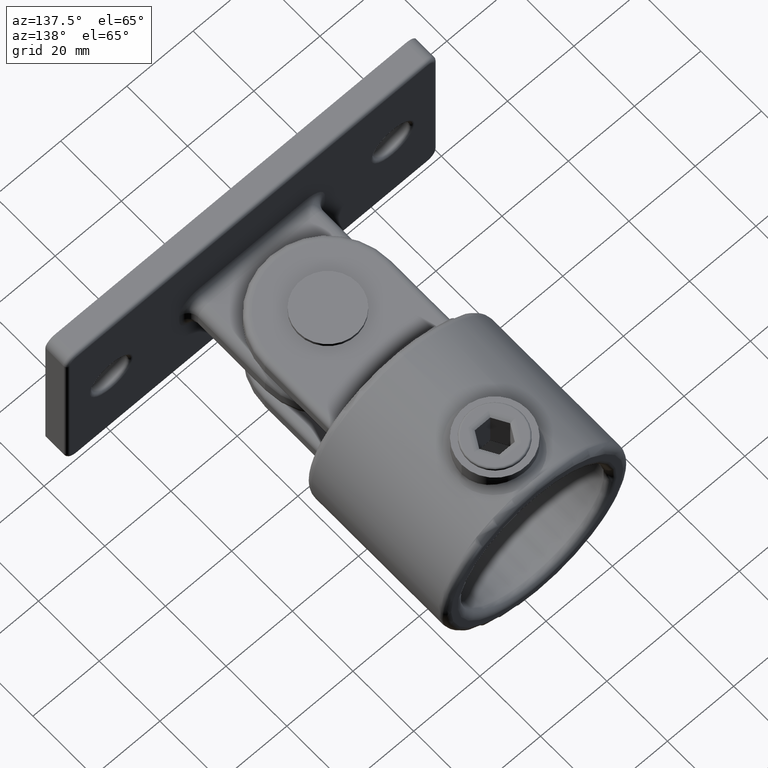
[diagram: clean part render]
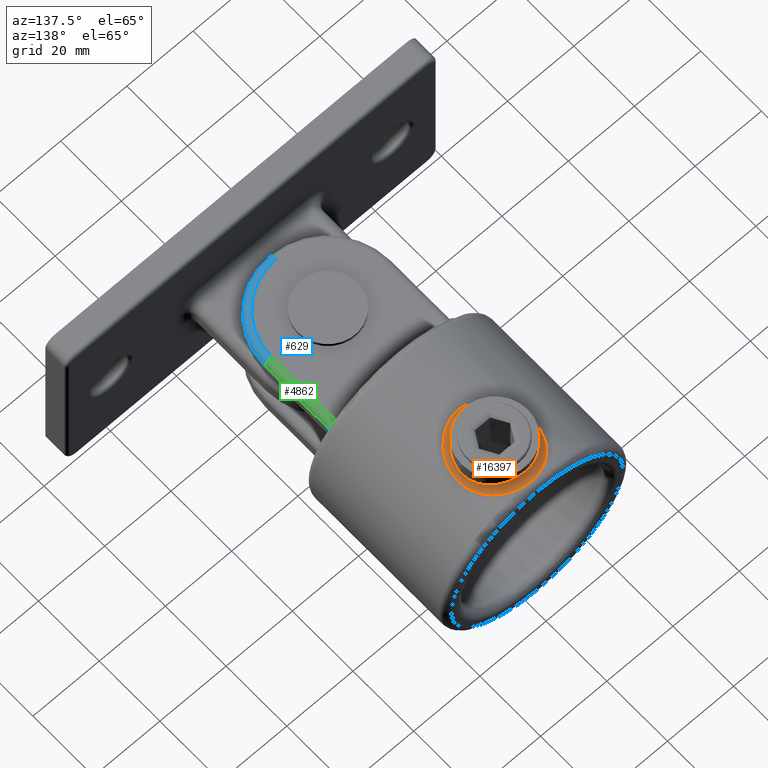
[diagram: same view with three faces highlighted in distinct colors, each labeled with its STEP entity id]
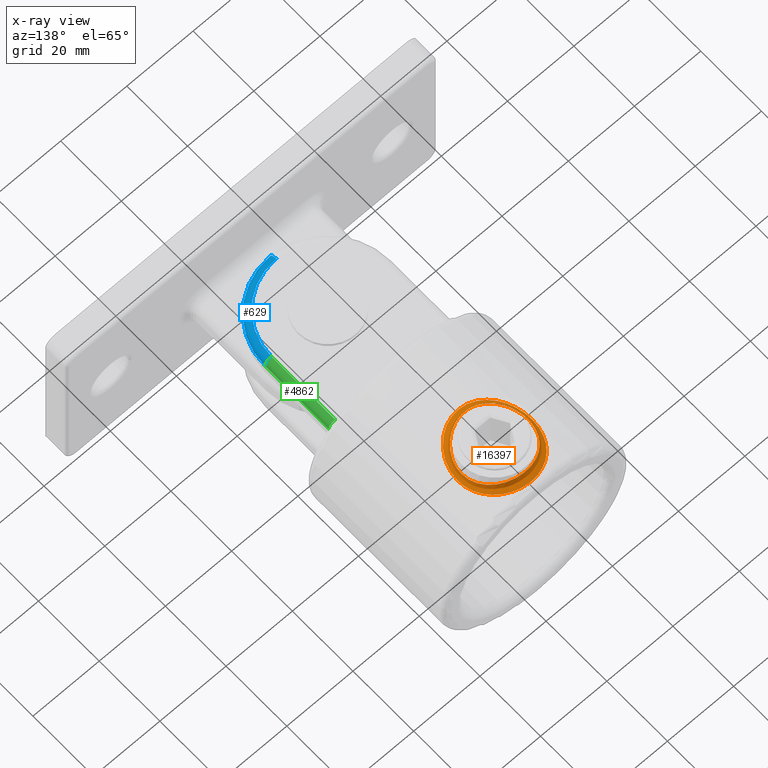
[diagram: x-ray of the same camera — body ghosted, the three highlighted faces saturated]
A machine part, auxiliary view with three faces highlighted in distinct colors.
The next image is the same camera in x-ray (body ghosted, the three faces saturated) — at least one of them is partly hidden behind the body in this view.
Their STEP definitions:

[orange] entity #16397 — the highlighted face is a freeform B-spline surface patch.
#21 = CARTESIAN_POINT ( 'NONE',  ( 2.629783221476000854, 23.65360509027751235, 29.83597071274957813 ) ) ;
#28 = CARTESIAN_POINT ( 'NONE',  ( 7.532800549669001811, 5.110973738277556855, 26.96924432193691246 ) ) ;
#73 = CARTESIAN_POINT ( 'NONE',  ( 0.3516981947030251576, 1.999349805185398399, 28.00024273915924411 ) ) ;
#81 = CARTESIAN_POINT ( 'NONE',  ( 3.744687437386371887, 2.661515700555105557, 27.75740275072740815 ) ) ;
#125 = CARTESIAN_POINT ( 'NONE',  ( 6.584769427346184756, 6.459178227579385201, 27.23839872165341802 ) ) ;
#128 = CARTESIAN_POINT ( 'NONE',  ( -2.644658232925793051, 25.66780403237011043, 27.87733791148229301 ) ) ;
#175 = CARTESIAN_POINT ( 'NONE',  ( -9.464014492319686056, 10.75325995588215022, 27.76757965017334584 ) ) ;
#177 = CARTESIAN_POINT ( 'NONE',  ( 1.832549563242844348, 2.155174545369845429, 27.94230516648193685 ) ) ;
#224 = CARTESIAN_POINT ( 'NONE',  ( 8.977818022158585265, 9.547563251389385997, 28.00070361428769772 ) ) ;
#228 = CARTESIAN_POINT ( 'NONE',  ( 1.636204967189925474, 4.129312121054778295, 29.93818410681499032 ) ) ;
#286 = CARTESIAN_POINT ( 'NONE',  ( 8.482985971267702041, 19.30510173558308296, 28.22107316986467040 ) ) ;
#289 = CARTESIAN_POINT ( 'NONE',  ( 3.881435603915837085, 4.774370393160706882, 27.74173735067795121 ) ) ;
#345 = CARTESIAN_POINT ( 'NONE',  ( -0.6706009245385096129, 23.99957668872029615, 29.99979681061999059 ) ) ;
#350 = CARTESIAN_POINT ( 'NONE',  ( -5.038046610002965053, 5.355656808256084034, 29.38661831412845515 ) ) ;
#404 = CARTESIAN_POINT ( 'NONE',  ( 9.918825818898687530, 12.68584688440435215, 27.53779497179125713 ) ) ;
#407 = CARTESIAN_POINT ( 'NONE',  ( -9.928233545772732427, 12.61835269876983645, 26.21377866745330820 ) ) ;
#451 = CARTESIAN_POINT ( 'NONE',  ( 9.999630030814385506, 14.66455621356421091, 27.49564793104740446 ) ) ;
#453 = CARTESIAN_POINT ( 'NONE',  ( -2.581811493615552955, 2.316450882666438726, 27.88309081919983967 ) ) ;
#511 = CARTESIAN_POINT ( 'NONE',  ( -8.542193033962986348, 8.751961045140182804, 26.69753210715830605 ) ) ;
#571 = CARTESIAN_POINT ( 'NONE',  ( -1.493212143783013479, 2.080699104625507001, 27.96963236038160616 ) ) ;
#593 = CARTESIAN_POINT ( 'NONE',  ( -11.12281784010497354, 15.61221044665752977, 25.69646245406260832 ) ) ;
#675 = CARTESIAN_POINT ( 'NONE',  ( -8.120439402843985022, 19.84499680683589418, 28.37423612316986876 ) ) ;
#757 = CARTESIAN_POINT ( 'NONE',  ( -9.735269890994116437, 16.30919858056524063, 27.63205671291962418 ) ) ;
#815 = CARTESIAN_POINT ( 'NONE',  ( -6.580081185954538725, 21.54477811910230400, 27.23949371231369909 ) ) ;
#867 = CARTESIAN_POINT ( 'NONE',  ( -6.086743236708330507, 21.94082262287870222, 29.09891794094582806 ) ) ;
#932 = CARTESIAN_POINT ( 'NONE',  ( -4.162788528604709271, 23.11803471389950460, 27.70663668587149431 ) ) ;
#990 = CARTESIAN_POINT ( 'NONE',  ( -2.593006641633675891, 23.66361563099595600, 29.84063916578200093 ) ) ;
#996 = CARTESIAN_POINT ( 'NONE',  ( -10.64116031228593862, 10.23714122589253961, 25.89937759353496105 ) ) ;
#1035 = CARTESIAN_POINT ( 'NONE',  ( -5.823201241610720835, 22.13615348585446085, 29.17673462571566745 ) ) ;
#1063 = EDGE_LOOP ( 'NONE', ( #16449 ) ) ;
#1091 = CARTESIAN_POINT ( 'NONE',  ( 9.707860079850689772, 19.99721875174915198, 26.26387774545455756 ) ) ;
#1099 = CARTESIAN_POINT ( 'NONE',  ( -4.783712661360009832, 3.142249767967116192, 27.59052361693120403 ) ) ;
#1146 = CARTESIAN_POINT ( 'NONE',  ( 9.020606976087588436, 18.33544944757525741, 26.53814489572342339 ) ) ;
#1152 = CARTESIAN_POINT ( 'NONE',  ( -10.11956413345941819, 8.800593386980857247, 26.10896200769188980 ) ) ;
#1203 = CARTESIAN_POINT ( 'NONE',  ( 10.05201441471716350, 19.30659945606447181, 26.13409320723526008 ) ) ;
#1209 = CARTESIAN_POINT ( 'NONE',  ( 11.19999059478599790, 13.61864809979259761, 25.66242799652462736 ) ) ;
#1252 = CARTESIAN_POINT ( 'NONE',  ( 11.10652081891077358, 12.40279774482392483, 25.70305100033207424 ) ) ;
#1257 = CARTESIAN_POINT ( 'NONE',  ( 11.18308204967106967, 13.23728656933544379, 25.66982781787445589 ) ) ;
#1302 = CARTESIAN_POINT ( 'NONE',  ( 7.956415808706483794, 20.09255453622201770, 28.44385507492043885 ) ) ;
#1306 = CARTESIAN_POINT ( 'NONE',  ( -7.543183185850574901, 22.90392337280938051, 26.96989668486448011 ) ) ;
#1357 = CARTESIAN_POINT ( 'NONE',  ( -10.00000000000000533, 13.32759955680974961, 27.49545416973507628 ) ) ;
#1360 = CARTESIAN_POINT ( 'NONE',  ( 9.003706013081265169, 9.629375313666658442, 26.54385734439792088 ) ) ;
#1367 = CARTESIAN_POINT ( 'NONE',  ( 5.783154808761124421, 3.693566784971920480, 27.40323246549202807 ) ) ;
#1415 = CARTESIAN_POINT ( 'NONE',  ( 10.03225112531792185, 8.650439032952084162, 26.14170524220186209 ) ) ;
#1420 = CARTESIAN_POINT ( 'NONE',  ( 0.7723240950228391632, 2.021468954359126435, 27.99196728377950905 ) ) ;
#1465 = CARTESIAN_POINT ( 'NONE',  ( -8.971429611559340600, 9.534326222801963624, 28.00367757269336266 ) ) ;
#1467 = CARTESIAN_POINT ( 'NONE',  ( 10.61363665765462905, 10.08893579396067253, 25.91221536658019531 ) ) ;
#1530 = CARTESIAN_POINT ( 'NONE',  ( 3.558907782991924229, 23.35109716725411388, 29.69676441460829963 ) ) ;
#1532 = CARTESIAN_POINT ( 'NONE',  ( 1.310075062142693092, 4.080618416617141975, 29.96141294225057550 ) ) ;
#1585 = CARTESIAN_POINT ( 'NONE',  ( -1.326783075261399825, 23.93362877966934477, 29.96788425861286598 ) ) ;
#1589 = CARTESIAN_POINT ( 'NONE',  ( -5.958261056872156125, 3.831415347147776984, 27.36048230365277334 ) ) ;
#1637 = CARTESIAN_POINT ( 'NONE',  ( 6.608787295665242922, 6.488124648242798109, 28.93444548278781525 ) ) ;
#1642 = CARTESIAN_POINT ( 'NONE',  ( -7.323304135398774228, 7.152036941658237446, 27.05514470895786872 ) ) ;
#1702 = CARTESIAN_POINT ( 'NONE',  ( -1.317487947733519960, 4.065006769535396636, 29.96853617370448575 ) ) ;
#1706 = CARTESIAN_POINT ( 'NONE',  ( -10.91404393883026813, 11.27714135335827272, 25.78545492027727093 ) ) ;
#1760 = CARTESIAN_POINT ( 'NONE',  ( 8.664340701934060363, 8.965471422321623862, 28.14440735947289340 ) ) ;
#1765 = CARTESIAN_POINT ( 'NONE',  ( -2.628951272902675385, 4.346120781833595181, 29.83609673525218398 ) ) ;
#1820 = CARTESIAN_POINT ( 'NONE',  ( -4.464995558829301103, 22.97151288054515561, 29.52667067408633272 ) ) ;
#1823 = CARTESIAN_POINT ( 'NONE',  ( -8.984929097692511135, 9.561488231786169578, 27.99741984215548740 ) ) ;
#1843 = CARTESIAN_POINT ( 'NONE',  ( -9.998522633554097538, 14.72743798400427551, 26.18670893897217056 ) ) ;
#1875 = CARTESIAN_POINT ( 'NONE',  ( -7.925234081429262112, 20.10695634164214951, 28.45385038625384766 ) ) ;
#1992 = CARTESIAN_POINT ( 'NONE',  ( -8.663773104302324057, 19.03598358475275631, 28.14470752134749176 ) ) ;
#2069 = CARTESIAN_POINT ( 'NONE',  ( -8.966789080486009311, 18.47482892758555906, 28.00582153280983988 ) ) ;
#2125 = CARTESIAN_POINT ( 'NONE',  ( -7.502335160051723406, 20.61967231912976928, 28.61848017210401096 ) ) ;
#2183 = CARTESIAN_POINT ( 'NONE',  ( -2.402664151747258892, 23.71402755850144572, 27.90282955897185602 ) ) ;
#2248 = CARTESIAN_POINT ( 'NONE',  ( -7.724569560228442100, 20.36678955776914535, 26.94112970075192237 ) ) ;
#2252 = CARTESIAN_POINT ( 'NONE',  ( -2.647919537594742412, 2.333000201121655071, 27.87704396042105515 ) ) ;
#2293 = CARTESIAN_POINT ( 'NONE',  ( -7.647131773968553148, 22.77602882135742135, 26.93682506249234976 ) ) ;
#2299 = CARTESIAN_POINT ( 'NONE',  ( -10.51748741808822629, 18.14279243670796760, 25.95001626174369846 ) ) ;
#2360 = CARTESIAN_POINT ( 'NONE',  ( 8.350638261194884393, 19.51873379600640135, 26.75530455884909387 ) ) ;
#2418 = CARTESIAN_POINT ( 'NONE',  ( 9.113941266227259419, 18.12816296460639620, 27.93588670542854757 ) ) ;
#2466 = CARTESIAN_POINT ( 'NONE',  ( 9.999445338537430672, 13.65530596991467149, 27.49574465821247315 ) ) ;
#2472 = CARTESIAN_POINT ( 'NONE',  ( -10.92828268449406615, 11.34522445561190196, 25.77941137766213231 ) ) ;
#2519 = CARTESIAN_POINT ( 'NONE',  ( 10.83996197360990976, 17.12212787123969093, 25.81705219177359112 ) ) ;
#2528 = CARTESIAN_POINT ( 'NONE',  ( 6.691377683936013732, 23.63099030850856863, 27.19047154736448135 ) ) ;
#2581 = CARTESIAN_POINT ( 'NONE',  ( 11.19937877913403312, 13.58636716389785981, 25.66269501433296085 ) ) ;
#2584 = CARTESIAN_POINT ( 'NONE',  ( 0.7696939795550981067, 25.97872372723444556, 27.99203922540072398 ) ) ;
#2637 = CARTESIAN_POINT ( 'NONE',  ( 2.601437069577000383, 4.322029718691892342, 29.84719060332018259 ) ) ;
#2643 = CARTESIAN_POINT ( 'NONE',  ( 7.808734503114975745, 22.61113766519815726, 26.89037696588745163 ) ) ;
#2686 = CARTESIAN_POINT ( 'NONE',  ( 9.098513963051487963, 9.837848825918113604, 27.94313869212059487 ) ) ;
#2690 = CARTESIAN_POINT ( 'NONE',  ( -3.741970592275058127, 25.31774902416056960, 27.75122849919262080 ) ) ;
#2738 = CARTESIAN_POINT ( 'NONE',  ( 5.014223432357568733, 5.336013665586764709, 27.56445029023884885 ) ) ;
#2792 = CARTESIAN_POINT ( 'NONE',  ( 2.299770008482030281, 23.73754045103155619, 29.87532749204057225 ) ) ;
#2797 = CARTESIAN_POINT ( 'NONE',  ( 8.886261898158254624, 6.654573957244380722, 26.55595746561132842 ) ) ;
#2851 = CARTESIAN_POINT ( 'NONE',  ( 6.850211648821393773, 6.707567576234553464, 28.85323908565629480 ) ) ;
#2855 = CARTESIAN_POINT ( 'NONE',  ( 8.426483124850827622, 6.056529285812968233, 26.70737583688500294 ) ) ;
#2907 = CARTESIAN_POINT ( 'NONE',  ( -2.292872485800729443, 4.260764813944157403, 29.87612271389792085 ) ) ;
#2910 = CARTESIAN_POINT ( 'NONE',  ( -11.12851177675230652, 12.43440306809087481, 25.69397571050774332 ) ) ;
#2911 = EDGE_LOOP ( 'NONE', ( #11024 ) ) ;
#2970 = CARTESIAN_POINT ( 'NONE',  ( 5.317037068854669535, 5.524561559949328959, 29.31549646788874597 ) ) ;
#2973 = CARTESIAN_POINT ( 'NONE',  ( -7.768800240381304789, 7.659825906459931666, 26.93072295357867674 ) ) ;
#3024 = CARTESIAN_POINT ( 'NONE',  ( 8.961096985873332699, 18.45025414472405245, 28.00723653991551032 ) ) ;
#3028 = CARTESIAN_POINT ( 'NONE',  ( -9.665091498298483685, 11.41263119079816413, 27.66765742750720491 ) ) ;
#3083 = CARTESIAN_POINT ( 'NONE',  ( -4.669702736903009743, 3.085746512225076454, 27.60996828032146411 ) ) ;
#3102 = CARTESIAN_POINT ( 'NONE',  ( -9.697119396808430380, 20.05515759546567622, 26.27076197237087740 ) ) ;
#3139 = CARTESIAN_POINT ( 'NONE',  ( -6.108233588266236858, 21.92424823643640508, 29.09241248789619050 ) ) ;
#3142 = CARTESIAN_POINT ( 'NONE',  ( -9.416380036455031188, 10.61114814213208568, 26.40093480289199945 ) ) ;
#3161 = CARTESIAN_POINT ( 'NONE',  ( -10.90350227794148985, 16.77103829667406032, 25.78991959883214236 ) ) ;
#3257 = CARTESIAN_POINT ( 'NONE',  ( -10.00128761155665735, 13.35099871839130081, 27.49477983057972708 ) ) ;
#3338 = CARTESIAN_POINT ( 'NONE',  ( -9.275779726057882257, 17.75700955432836281, 26.45056431632884042 ) ) ;
#3400 = CARTESIAN_POINT ( 'NONE',  ( 0.3462563910939123746, 23.99947496776905709, 29.99974798471727766 ) ) ;
#3465 = CARTESIAN_POINT ( 'NONE',  ( -3.612210381327234376, 25.36567340826970707, 27.76830905387849668 ) ) ;
#3517 = CARTESIAN_POINT ( 'NONE',  ( -7.378904408119701053, 23.03587341338716499, 27.01177667250274439 ) ) ;
#3523 = CARTESIAN_POINT ( 'NONE',  ( -11.13127737483506152, 12.46898257816558697, 25.69272888675468280 ) ) ;
#3572 = CARTESIAN_POINT ( 'NONE',  ( 0.000000000000000000, 2.000000000000001776, 28.00000000000000000 ) ) ;
#3577 = CARTESIAN_POINT ( 'NONE',  ( -5.817544561340643128, 22.14713530951845755, 27.40956148839390494 ) ) ;
#3631 = CARTESIAN_POINT ( 'NONE',  ( -2.542040842944385926, 25.69351597425330525, 27.88673347973900363 ) ) ;
#3638 = CARTESIAN_POINT ( 'NONE',  ( -10.11484451454184175, 19.20968446854460154, 26.11079207424144144 ) ) ;
#3690 = CARTESIAN_POINT ( 'NONE',  ( 10.20761421826546389, 18.95379555753548573, 26.07349425858201286 ) ) ;
#3741 = CARTESIAN_POINT ( 'NONE',  ( 8.868432246816297493, 18.63926833292167373, 26.58923638789226018 ) ) ;
#3797 = CARTESIAN_POINT ( 'NONE',  ( 6.375564855044030921, 21.73987632499438760, 27.29073719561396061 ) ) ;
#3805 = CARTESIAN_POINT ( 'NONE',  ( 1.084202172485504434E-16, 1.999999999999998224, 28.00000000000001066 ) ) ;
#3857 = CARTESIAN_POINT ( 'NONE',  ( 10.00106855654414595, 14.63993119817793165, 27.49489454305166447 ) ) ;
#3864 = CARTESIAN_POINT ( 'NONE',  ( 7.543656428366906752, 22.87855492968563098, 26.96622558423325344 ) ) ;
#3911 = CARTESIAN_POINT ( 'NONE',  ( 9.916536445572889491, 12.66899812067259035, 27.53898321458070697 ) ) ;
#3913 = CARTESIAN_POINT ( 'NONE',  ( 4.099533104611288614, 25.17455714945327117, 27.70048619003869561 ) ) ;
#3957 = CARTESIAN_POINT ( 'NONE',  ( 5.614428833054371459, 3.609277324852082192, 27.43329088604967936 ) ) ;
#3966 = CARTESIAN_POINT ( 'NONE',  ( 6.685855451333902799, 4.364677285227934966, 27.19181575693028208 ) ) ;
#4018 = CARTESIAN_POINT ( 'NONE',  ( 5.818728772384158532, 5.853710081080913064, 27.40931485002937862 ) ) ;
#4024 = CARTESIAN_POINT ( 'NONE',  ( 3.026452091002769684, 2.417951931987433412, 27.84589731764526377 ) ) ;
#4068 = CARTESIAN_POINT ( 'NONE',  ( -9.657469083909209218, 11.38424349025884830, 27.67149652192184206 ) ) ;
#4071 = CARTESIAN_POINT ( 'NONE',  ( 5.012882886627099133, 5.341064437504911666, 29.39281166387451805 ) ) ;
#4118 = CARTESIAN_POINT ( 'NONE',  ( 9.100784627109424818, 18.15707219565449648, 27.94206884865535301 ) ) ;
#4120 = CARTESIAN_POINT ( 'NONE',  ( 5.925548016882080660, 3.809648788071719583, 27.36755742116812939 ) ) ;
#4175 = CARTESIAN_POINT ( 'NONE',  ( 9.476708080692990421, 17.25793250835368653, 27.76294633932059952 ) ) ;
#4178 = CARTESIAN_POINT ( 'NONE',  ( 10.19033563865300351, 9.005418591119214611, 26.08026277950021665 ) ) ;
#4232 = CARTESIAN_POINT ( 'NONE',  ( 7.940698906337294360, 20.11276717480210507, 28.45018049847979213 ) ) ;
#4236 = CARTESIAN_POINT ( 'NONE',  ( -3.259318639022738218, 4.540316561133731277, 29.74638994934173652 ) ) ;
#4286 = CARTESIAN_POINT ( 'NONE',  ( 9.480102581375101423, 10.75145194187020081, 27.76128559405073659 ) ) ;
#4287 = EDGE_CURVE ( 'NONE', #15272, #15272, #7437, .T. ) ;
#4290 = CARTESIAN_POINT ( 'NONE',  ( -3.033803444395438031, 4.463361934103611262, 27.84362345915576498 ) ) ;
#4341 = CARTESIAN_POINT ( 'NONE',  ( 4.471808932678338344, 22.96873994643014427, 29.52542342355806682 ) ) ;
#4344 = CARTESIAN_POINT ( 'NONE',  ( -2.305188833609407961, 4.263709068782330469, 29.87474016346742545 ) ) ;
#4403 = CARTESIAN_POINT ( 'NONE',  ( -8.971204129905633096, 18.46593940160621372, 28.00377558437639181 ) ) ;
#4406 = CARTESIAN_POINT ( 'NONE',  ( -4.169377443665782224, 4.904788760240297307, 29.58210887196210592 ) ) ;
#4424 = CARTESIAN_POINT ( 'NONE',  ( -8.658142318561042217, 19.04596466277270395, 28.14724497091469857 ) ) ;
#4456 = CARTESIAN_POINT ( 'NONE',  ( -0.6241455581159719435, 4.000945816271174849, 27.99967572039187402 ) ) ;
#4532 = CARTESIAN_POINT ( 'NONE',  ( -9.705584999872623797, 16.43695357891430930, 26.29636289453346976 ) ) ;
#4659 = CARTESIAN_POINT ( 'NONE',  ( -9.931087357286724426, 15.34350870554089141, 27.53192405815384802 ) ) ;
#4712 = CARTESIAN_POINT ( 'NONE',  ( 1.867977311477505342, 25.83849044601307199, 27.93996355600103598 ) ) ;
#4767 = CARTESIAN_POINT ( 'NONE',  ( 0.3185499077336056972, 23.99955898119354458, 27.99984879365391421 ) ) ;
#4826 = CARTESIAN_POINT ( 'NONE',  ( 2.139021884359135317, 23.77487284924612254, 27.92337084801663138 ) ) ;
#4832 = CARTESIAN_POINT ( 'NONE',  ( -8.997599709604871876, 6.843450776359100374, 26.51602716940408300 ) ) ;
#4886 = CARTESIAN_POINT ( 'NONE',  ( -2.099508486536844298, 23.78340752913951661, 27.92625380345393182 ) ) ;
#4935 = CARTESIAN_POINT ( 'NONE',  ( -8.865168240339151851, 21.34382986786775760, 26.56064571959595710 ) ) ;
#4941 = CARTESIAN_POINT ( 'NONE',  ( -9.785390622970792762, 19.88838342800938364, 26.23774433766786984 ) ) ;
#4996 = CARTESIAN_POINT ( 'NONE',  ( 9.866425333988766866, 12.33775053591581283, 27.56498874133728449 ) ) ;
#5053 = CARTESIAN_POINT ( 'NONE',  ( 6.636025418196405568, 21.50874812568693528, 28.92943878828994642 ) ) ;
#5103 = CARTESIAN_POINT ( 'NONE',  ( 9.980775206326921278, 13.28797081328602303, 26.19348343399727952 ) ) ;
#5153 = CARTESIAN_POINT ( 'NONE',  ( -8.664429000265682745, 8.965648030900050358, 28.14436559482914291 ) ) ;
#5155 = CARTESIAN_POINT ( 'NONE',  ( 8.534153500147700910, 19.23023735186302829, 26.69762205477304207 ) ) ;
#5160 = CARTESIAN_POINT ( 'NONE',  ( 8.561818085885281704, 21.77491502563403003, 26.66402262778221299 ) ) ;
#5199 = B_SPLINE_CURVE_WITH_KNOTS ( 'NONE', 3,
 ( #6224, #14030, #15213, #2252, #6274, #6169, #8747, #1099, #15159, #6109, #8850, #8804, #12655, #13972, #16612, #4832, #16454, #10136, #1152, #11319, #996, #10193, #2472, #3523, #12488, #10026, #13799, #15102, #7401, #16393, #2299, #3638, #4941, #13921, #7518, #16512, #5323, #1306, #9110, #6442, #10405, #11479, #2690, #14140, #128, #11586, #7681, #9162, #2584, #12924, #12815, #9001, #15435, #6548, #3913, #11634, #5270, #2528, #14251, #3864, #2643, #5160, #7901, #11534, #8953, #14075, #7733, #16670, #16725, #10349, #11689, #1209, #1257, #10243, #12869, #6602, #10298, #14304, #7788, #15543, #5217, #14191, #9056, #6500, #28, #15487, #3966, #1367, #7841, #81, #4024, #12981, #15590, #1420, #10459, #3805 ),
 .UNSPECIFIED., .T., .F.,
 ( 4, 2, 2, 2, 2, 2, 2, 2, 2, 2, 2, 2, 2, 2, 2, 2, 2, 2, 2, 2, 2, 2, 2, 2, 2, 2, 2, 2, 2, 2, 2, 2, 2, 2, 2, 2, 2, 2, 2, 2, 2, 2, 2, 2, 2, 2, 2, 4 ),
 ( 0.05573573240919368205, 0.05805783334056103390, 0.05921888380624470982, 0.06037993427192837881, 0.06154098473761205473, 0.06270203520329573066, 0.06502413613466308251, 0.06618518660034676537, 0.06734623706603043436, 0.06966833799739778621, 0.07082938846308146907, 0.07199043892876513806, 0.07431253986013250379, 0.07663464079149986952, 0.07779569125718355238, 0.07895674172286723524, 0.08127884265423460097, 0.08243989311991829771, 0.08360094358560199446, 0.08592304451696937406, 0.08824514544833675367, 0.08940619591402043653, 0.09056724637970411940, 0.09288934731107151288, 0.09405039777675519574, 0.09521144824243887861, 0.09637249870812258923, 0.09753354917380627209, 0.09985565010517363782, 0.1010167005708573484, 0.1021777510365410313, 0.1044998519679084248, 0.1056609024335921077, 0.1068219528992757905, 0.1091440538306431701, 0.1114661547620105359, 0.1126272052276942326, 0.1137882556933779155, 0.1161103566247453089, 0.1172714070904289918, 0.1184324575561126747, 0.1207545584874800682, 0.1219156089531637510, 0.1230766594188474616, 0.1253987603502148274, 0.1277208612815822208, 0.1288819117472659037, 0.1300429622129496143 ),
 .UNSPECIFIED. ) ;
#5211 = CARTESIAN_POINT ( 'NONE',  ( 8.667732214164717064, 18.99768229317062662, 28.13986901275140795 ) ) ;
#5217 = CARTESIAN_POINT ( 'NONE',  ( 9.591048099897637513, 7.791215666928285266, 26.30693345468935718 ) ) ;
#5264 = CARTESIAN_POINT ( 'NONE',  ( 7.652226092631607024, 5.228909764858183706, 26.93540089387484926 ) ) ;
#5270 = CARTESIAN_POINT ( 'NONE',  ( 5.785074405635080907, 24.30545509505185464, 27.40288355683983923 ) ) ;
#5320 = CARTESIAN_POINT ( 'NONE',  ( 8.327325719313900976, 8.446179228225897617, 26.76250856246721810 ) ) ;
#5323 = CARTESIAN_POINT ( 'NONE',  ( -8.296535899870814745, 22.07048086767498418, 26.74390074398356987 ) ) ;
#5370 = CARTESIAN_POINT ( 'NONE',  ( 3.227495389908800139, 4.512231651199114957, 29.75813084090554028 ) ) ;
#5426 = CARTESIAN_POINT ( 'NONE',  ( 1.326135221870585079, 23.91729171544199772, 29.96041587052594934 ) ) ;
#5427 = CARTESIAN_POINT ( 'NONE',  ( 8.476875332795412277, 8.685157139081892907, 28.22371838225659957 ) ) ;
#5476 = CARTESIAN_POINT ( 'NONE',  ( -3.249797247090345564, 4.537015345617104956, 29.74790242890324166 ) ) ;
#5481 = CARTESIAN_POINT ( 'NONE',  ( 1.206982623669184518, 4.067882817515734217, 27.97677029373657120 ) ) ;
#5533 = CARTESIAN_POINT ( 'NONE',  ( 7.536724103564607979, 7.395632434359557195, 28.61001122192883273 ) ) ;
#5535 = CARTESIAN_POINT ( 'NONE',  ( -5.319875943680652419, 5.526179455810396490, 29.31480246791901934 ) ) ;
#5584 = CARTESIAN_POINT ( 'NONE',  ( 9.672608292201111624, 11.37675114992200243, 27.66412323128110273 ) ) ;
#5588 = CARTESIAN_POINT ( 'NONE',  ( -7.960168205353784110, 7.912689648277248189, 28.44230343373267189 ) ) ;
#5635 = CARTESIAN_POINT ( 'NONE',  ( -5.310178048851414090, 5.520130785399793183, 29.31732745362356241 ) ) ;
#5640 = CARTESIAN_POINT ( 'NONE',  ( -9.720479461413995992, 7.988659614340068771, 26.26203537827751688 ) ) ;
#5695 = CARTESIAN_POINT ( 'NONE',  ( -7.514775830554404124, 20.60548220955038445, 28.61376543254219129 ) ) ;
#5699 = CARTESIAN_POINT ( 'NONE',  ( -6.369593469689201370, 6.255199415761120818, 27.29211524616320261 ) ) ;
#5745 = CARTESIAN_POINT ( 'NONE',  ( -6.844573745175812185, 21.29759653527099417, 28.85514315200596869 ) ) ;
#5748 = CARTESIAN_POINT ( 'NONE',  ( -4.196259169220746266, 4.912618060690425281, 27.69721200769909331 ) ) ;
#5826 = CARTESIAN_POINT ( 'NONE',  ( -9.615494545570431484, 16.77200034032905762, 26.32942510124329516 ) ) ;
#5861 = CARTESIAN_POINT ( 'NONE',  ( -9.933037868943605631, 15.32980299081982700, 27.53090705241967129 ) ) ;
#5992 = CARTESIAN_POINT ( 'NONE',  ( -7.286508413190773581, 20.86463419286985044, 27.06149377077714036 ) ) ;
#6045 = CARTESIAN_POINT ( 'NONE',  ( -3.225187840427999664, 23.47139450667857474, 29.75175970081192389 ) ) ;
#6104 = CARTESIAN_POINT ( 'NONE',  ( -3.957476356700500464, 25.23271583384432759, 27.72101469981523536 ) ) ;
#6109 = CARTESIAN_POINT ( 'NONE',  ( -5.769200118086655671, 3.706748654926748987, 27.40121333363465794 ) ) ;
#6163 = CARTESIAN_POINT ( 'NONE',  ( -1.193028837426993283, 23.94808426922524092, 27.98208677384683440 ) ) ;
#6169 = CARTESIAN_POINT ( 'NONE',  ( -3.744827135944821972, 2.683347793272316206, 27.75083880446603146 ) ) ;
#6219 = CARTESIAN_POINT ( 'NONE',  ( -5.008260930181926085, 22.68009144179520931, 29.39945633332732555 ) ) ;
#6224 = CARTESIAN_POINT ( 'NONE',  ( 1.084202172485504434E-16, 1.999999999999998224, 28.00000000000001066 ) ) ;
#6271 = CARTESIAN_POINT ( 'NONE',  ( 9.631942205231130316, 11.21847362966814821, 26.32366074866369843 ) ) ;
#6274 = CARTESIAN_POINT ( 'NONE',  ( -3.021373893287945922, 2.437737596081587022, 27.83889517251941115 ) ) ;
#6320 = CARTESIAN_POINT ( 'NONE',  ( 10.62567711546174287, 17.87275407647885217, 25.90723739349548183 ) ) ;
#6377 = CARTESIAN_POINT ( 'NONE',  ( 6.128337485230726855, 21.92871519648061351, 29.09222188835477141 ) ) ;
#6434 = CARTESIAN_POINT ( 'NONE',  ( -7.944947894198872262, 7.893050466240094210, 28.44843591574975861 ) ) ;
#6437 = CARTESIAN_POINT ( 'NONE',  ( 4.769700049821147481, 22.81867061511025341, 27.61097869008043659 ) ) ;
#6442 = CARTESIAN_POINT ( 'NONE',  ( -5.767352570625357444, 24.31738305150062729, 27.40675422498308222 ) ) ;
#6495 = CARTESIAN_POINT ( 'NONE',  ( 7.764739990994908858, 20.34551200387306125, 26.93191553266539273 ) ) ;
#6500 = CARTESIAN_POINT ( 'NONE',  ( 7.801396604794496703, 5.381135923657353715, 26.89252246397644086 ) ) ;
#6543 = CARTESIAN_POINT ( 'NONE',  ( 6.818453427153214008, 4.472081890706641083, 27.15866306968354493 ) ) ;
#6548 = CARTESIAN_POINT ( 'NONE',  ( 3.742234252473591649, 25.31759204910764538, 27.75117409762413345 ) ) ;
#6597 = CARTESIAN_POINT ( 'NONE',  ( 7.523645647123632152, 7.380441071715442725, 28.61504554008784851 ) ) ;
#6602 = CARTESIAN_POINT ( 'NONE',  ( 10.85744776363479858, 10.95586622200028160, 25.80965000872682324 ) ) ;
#6650 = CARTESIAN_POINT ( 'NONE',  ( 9.682963788920851300, 7.956576709089370425, 26.27308561768211348 ) ) ;
#6702 = CARTESIAN_POINT ( 'NONE',  ( 6.110221542101424319, 6.077277391822720531, 29.09181247364199407 ) ) ;
#6704 = CARTESIAN_POINT ( 'NONE',  ( 8.849148278792545952, 9.323803078245918030, 26.59563370979951102 ) ) ;
#6755 = CARTESIAN_POINT ( 'NONE',  ( -5.028815885516173978, 5.350301417599136578, 29.38889090401577064 ) ) ;
#6758 = CARTESIAN_POINT ( 'NONE',  ( 0.5963588741632145362, 4.012978828042311541, 27.99554330349905840 ) ) ;
#6817 = CARTESIAN_POINT ( 'NONE',  ( -2.623432459663689542, 23.65541545845544746, 29.83681196435464855 ) ) ;
#6820 = CARTESIAN_POINT ( 'NONE',  ( -4.762617531880742661, 5.195630374621664771, 27.60798950121517592 ) ) ;
#6864 = CARTESIAN_POINT ( 'NONE',  ( 9.869032174585328221, 12.35306333972797255, 27.56364396502982572 ) ) ;
#6868 = CARTESIAN_POINT ( 'NONE',  ( -10.82490247815200135, 10.89515742891834194, 25.82314693218555490 ) ) ;
#6920 = CARTESIAN_POINT ( 'NONE',  ( -4.160726480184114173, 4.900824873870913478, 29.58386554903102095 ) ) ;
#6922 = CARTESIAN_POINT ( 'NONE',  ( -10.06312058993559688, 8.673785877972974845, 26.13092518635486172 ) ) ;
#6979 = CARTESIAN_POINT ( 'NONE',  ( -6.606638979578764115, 21.51375732074172120, 28.93515081128246536 ) ) ;
#6983 = CARTESIAN_POINT ( 'NONE',  ( -8.915388390061984580, 6.695227578003200897, 26.54614987194977971 ) ) ;
#7002 = CARTESIAN_POINT ( 'NONE',  ( -9.922544661051686532, 15.42270869147916734, 26.21594410769947459 ) ) ;
#7034 = FACE_OUTER_BOUND ( 'NONE', #2911, .T. ) ;
#7038 = CARTESIAN_POINT ( 'NONE',  ( -8.877576932449255054, 9.339180520416926257, 26.58726852578950073 ) ) ;
#7199 = CARTESIAN_POINT ( 'NONE',  ( -3.563895403299319309, 23.34904843986168999, 29.69584402496031927 ) ) ;
#7283 = CARTESIAN_POINT ( 'NONE',  ( -7.934667464519969293, 20.10295370673182447, 26.88046967082856042 ) ) ;
#7330 = CARTESIAN_POINT ( 'NONE',  ( 0.7627127949266846452, 25.97877221881933707, 27.99205958852367360 ) ) ;
#7392 = CARTESIAN_POINT ( 'NONE',  ( 2.311867187424727632, 23.73464117991244393, 29.87396625780724335 ) ) ;
#7401 = CARTESIAN_POINT ( 'NONE',  ( -10.84089027908294689, 17.03882154598195697, 25.81641548228865446 ) ) ;
#7437 = B_SPLINE_CURVE_WITH_KNOTS ( 'NONE', 3,
 ( #7892, #1357, #12918, #11734, #4068, #175, #9209, #1465, #5153, #6434, #11843, #10674, #10726, #5635, #6755, #9435, #6920, #15753, #5476, #14566, #2907, #1702, #15694, #10559, #7998, #10618, #14620, #8048, #15926, #15807, #13258, #11897, #2970, #8221, #6702, #1637, #2851, #5533, #11945, #1760, #224, #4286, #5584, #6864, #404, #9266, #13316, #451, #11789, #14513, #4175, #4118, #3024, #13089, #286, #4232, #8164, #12001, #9380, #14461, #4341, #1530, #15872, #9497, #2792, #13142, #5426, #14399, #9319, #345, #1585, #13203, #6817, #8110, #7199, #1820, #8278, #13366, #3139, #6979, #5745, #9713, #5695, #1875, #675, #1992, #4403, #9766, #11017, #8393, #12287, #5861, #8445, #13422 ),
 .UNSPECIFIED., .T., .F.,
 ( 4, 2, 2, 2, 2, 2, 2, 2, 2, 2, 2, 2, 2, 2, 2, 2, 2, 2, 2, 2, 2, 2, 2, 2, 2, 2, 2, 2, 2, 2, 2, 2, 2, 2, 2, 2, 2, 2, 2, 2, 2, 2, 2, 2, 2, 2, 4 ),
 ( 0.000000000000000000, 0.001981109626637204794, 0.002971664439955810227, 0.003962219253274415660, 0.005943328879911628261, 0.007924438506548839994, 0.009905548133186050860, 0.01089610294650465716, 0.01188665775982326346, 0.01287721257314186976, 0.01386776738646047433, 0.01584887701309769040, 0.01683943182641629496, 0.01782998663973490300, 0.01981109626637211560, 0.02080165107969072016, 0.02179220589300932820, 0.02278276070632793276, 0.02377331551964654080, 0.02575442514628375687, 0.02773553477292096947, 0.02971664439955818554, 0.03070719921287679011, 0.03169775402619540161, 0.03367886365283261074, 0.03565997327946982681, 0.03665052809278842444, 0.03764108290610702900, 0.03962219253274423814, 0.04160330215938144727, 0.04358441178601866334, 0.04457496659933726790, 0.04556552141265586553, 0.04655607622597448397, 0.04754663103929308160, 0.04952774066593029073, 0.05051829547924890224, 0.05150885029256751374, 0.05348995991920472981, 0.05448051473252334131, 0.05547106954584194588, 0.05646162435916055738, 0.05745217917247916195, 0.05943328879911637802, 0.06042384361243498953, 0.06141439842575360103, 0.06339550805239080322 ),
 .UNSPECIFIED. ) ;
#7453 = CARTESIAN_POINT ( 'NONE',  ( 1.538163285758828991, 23.88657618696946017, 27.96122330737926731 ) ) ;
#7513 = CARTESIAN_POINT ( 'NONE',  ( -6.817152425095711621, 23.52898714734480023, 27.15899007846837421 ) ) ;
#7518 = CARTESIAN_POINT ( 'NONE',  ( -8.984786364356219579, 21.17490072222729580, 26.52036537418151951 ) ) ;
#7571 = CARTESIAN_POINT ( 'NONE',  ( 3.648395134203953560, 25.35231541321117632, 27.76354652645281718 ) ) ;
#7627 = CARTESIAN_POINT ( 'NONE',  ( 6.863737983335973070, 23.51445823572512595, 27.15274042873797455 ) ) ;
#7677 = CARTESIAN_POINT ( 'NONE',  ( 9.428885569548821621, 17.40363644952280353, 26.39783681659088899 ) ) ;
#7681 = CARTESIAN_POINT ( 'NONE',  ( -0.7687833532670446113, 25.99983540633282075, 27.99993855169861234 ) ) ;
#7728 = CARTESIAN_POINT ( 'NONE',  ( 5.658581953538065257, 24.38504543266708779, 27.42923006884086590 ) ) ;
#7733 = CARTESIAN_POINT ( 'NONE',  ( 10.25663744761835083, 18.83545114105362117, 26.05421008773298297 ) ) ;
#7780 = CARTESIAN_POINT ( 'NONE',  ( 11.05039637380513362, 12.00530064314623147, 25.72732282514432711 ) ) ;
#7788 = CARTESIAN_POINT ( 'NONE',  ( 10.10528906151702166, 8.811221427791643634, 26.11349804759415250 ) ) ;
#7834 = CARTESIAN_POINT ( 'NONE',  ( 4.737657523367247769, 5.182228798562623417, 27.61216758111232750 ) ) ;
#7841 = CARTESIAN_POINT ( 'NONE',  ( 5.135538494342041460, 3.305015188848794416, 27.53402142519213669 ) ) ;
#7892 = CARTESIAN_POINT ( 'NONE',  ( -10.00000000000000178, 13.99999999999999822, 27.49545416973506917 ) ) ;
#7894 = CARTESIAN_POINT ( 'NONE',  ( 9.494100372570779101, 7.622188566959995804, 26.34213715656069610 ) ) ;
#7901 = CARTESIAN_POINT ( 'NONE',  ( 9.008094344440811696, 21.17248677086261566, 26.51466327247760546 ) ) ;
#7943 = CARTESIAN_POINT ( 'NONE',  ( 2.406719158393721969, 4.273079426076526133, 27.90710734191750220 ) ) ;
#7998 = CARTESIAN_POINT ( 'NONE',  ( 0.6737986918661270641, 4.017148461690674743, 29.99175192173827753 ) ) ;
#8001 = CARTESIAN_POINT ( 'NONE',  ( 4.140569404640214835, 4.891525721150933315, 29.58798397562174287 ) ) ;
#8048 = CARTESIAN_POINT ( 'NONE',  ( 2.632189844742755191, 4.330223338563962798, 29.84335402957596983 ) ) ;
#8055 = CARTESIAN_POINT ( 'NONE',  ( 0.2889020229039634402, 3.999544852672964002, 28.00015605038638711 ) ) ;
#8110 = CARTESIAN_POINT ( 'NONE',  ( -3.255849477052304763, 23.46091378930047355, 29.74695279777169432 ) ) ;
#8113 = CARTESIAN_POINT ( 'NONE',  ( -2.436510407017719704, 4.294370542275872005, 27.90000650275381133 ) ) ;
#8164 = CARTESIAN_POINT ( 'NONE',  ( 7.532649301026015820, 20.60862266219617567, 28.61148771171488647 ) ) ;
#8167 = CARTESIAN_POINT ( 'NONE',  ( -9.744682088200921299, 11.73095112779860472, 27.62727312875586705 ) ) ;
#8180 = EDGE_CURVE ( 'NONE', #9291, #9291, #5199, .T. ) ;
#8221 = CARTESIAN_POINT ( 'NONE',  ( 5.851919554816933378, 5.884645573567692800, 29.16840172154028465 ) ) ;
#8224 = CARTESIAN_POINT ( 'NONE',  ( -6.630257871502426070, 6.486145742758203880, 28.93135341251230130 ) ) ;
#8278 = CARTESIAN_POINT ( 'NONE',  ( -5.035221827422898144, 22.66434832084090800, 29.39275725080899804 ) ) ;
#8281 = CARTESIAN_POINT ( 'NONE',  ( -4.463495320003445954, 5.045459677374885210, 29.52006899190968170 ) ) ;
#8336 = CARTESIAN_POINT ( 'NONE',  ( -9.473901564856866742, 10.78228960832166372, 27.76271763996846431 ) ) ;
#8393 = CARTESIAN_POINT ( 'NONE',  ( -9.656983315117049216, 16.61767646655661324, 27.67174293845051025 ) ) ;
#8396 = CARTESIAN_POINT ( 'NONE',  ( -9.999978715571282706, 14.02066241896284104, 26.18615492666113198 ) ) ;
#8415 = CARTESIAN_POINT ( 'NONE',  ( -10.04280377056023177, 19.36979471322732849, 26.13876676430828283 ) ) ;
#8445 = CARTESIAN_POINT ( 'NONE',  ( -9.999999999999998224, 14.67240044319024683, 27.49545416973506562 ) ) ;
#8472 = CARTESIAN_POINT ( 'NONE',  ( -9.999980898586137812, 14.01954553433432693, 27.49546417357222339 ) ) ;
#8503 = CARTESIAN_POINT ( 'NONE',  ( -11.19997860641647591, 14.02345464120119267, 25.66243322866741039 ) ) ;
#8571 = CARTESIAN_POINT ( 'NONE',  ( -7.057247526902738599, 21.09996098652332464, 27.12153059053325421 ) ) ;
#8629 = CARTESIAN_POINT ( 'NONE',  ( 1.502730073389862975, 25.89817079831680147, 27.96209815342072602 ) ) ;
#8691 = CARTESIAN_POINT ( 'NONE',  ( 2.945357208081665235, 25.58432610839106758, 27.84690599866697269 ) ) ;
#8740 = CARTESIAN_POINT ( 'NONE',  ( -1.299916516224864926, 23.93703422082989007, 29.96952226461858260 ) ) ;
#8747 = CARTESIAN_POINT ( 'NONE',  ( -4.097098644318603711, 2.824551964649088642, 27.70080654027275102 ) ) ;
#8795 = CARTESIAN_POINT ( 'NONE',  ( -5.549694981026272345, 22.33155139026982638, 27.46401326874352833 ) ) ;
#8804 = CARTESIAN_POINT ( 'NONE',  ( -6.997881174665810278, 4.597280063608572220, 27.11859708352944409 ) ) ;
#8847 = CARTESIAN_POINT ( 'NONE',  ( 3.329204629849690011, 23.43826695844199293, 27.81105851183727040 ) ) ;
#8850 = CARTESIAN_POINT ( 'NONE',  ( -6.087440023879439721, 3.919477437643853701, 27.33203680910113675 ) ) ;
#8896 = CARTESIAN_POINT ( 'NONE',  ( 8.911185706186497413, 21.31106544367584732, 26.54759807033144625 ) ) ;
#8947 = CARTESIAN_POINT ( 'NONE',  ( 3.996766254437762012, 25.21690277891382337, 27.71542251343723251 ) ) ;
#8953 = CARTESIAN_POINT ( 'NONE',  ( 9.778169008957179997, 19.86412549992865806, 26.23773088389403085 ) ) ;
#8994 = CARTESIAN_POINT ( 'NONE',  ( 9.930285923282195171, 15.37226363549927122, 26.21301870866414063 ) ) ;
#9001 = CARTESIAN_POINT ( 'NONE',  ( 2.654956995303310308, 25.66505706688722199, 27.87633630452182842 ) ) ;
#9050 = CARTESIAN_POINT ( 'NONE',  ( 7.547796350071057425, 20.59157811330563348, 28.60576476628411413 ) ) ;
#9056 = CARTESIAN_POINT ( 'NONE',  ( 8.559149010179272210, 6.221292398433961424, 26.66494294133507736 ) ) ;
#9105 = CARTESIAN_POINT ( 'NONE',  ( 2.996410592713477428, 4.435512677360468281, 27.85226974396340083 ) ) ;
#9110 = CARTESIAN_POINT ( 'NONE',  ( -6.987466508292720313, 23.41187922168014879, 27.12135403363952335 ) ) ;
#9154 = CARTESIAN_POINT ( 'NONE',  ( 5.828179315984272968, 5.867542445069527268, 29.17526299799472511 ) ) ;
#9162 = CARTESIAN_POINT ( 'NONE',  ( 0.3810297461700841160, 26.00008193641980725, 28.00003058959620716 ) ) ;
#9209 = CARTESIAN_POINT ( 'NONE',  ( -9.350733156245100375, 10.44036696686609922, 27.82298517291964757 ) ) ;
#9213 = CARTESIAN_POINT ( 'NONE',  ( 1.508801117262958957, 4.108948867432006935, 27.96274736999924215 ) ) ;
#9266 = CARTESIAN_POINT ( 'NONE',  ( 9.984124136576044251, 13.34626514371602823, 27.50379402798789386 ) ) ;
#9270 = CARTESIAN_POINT ( 'NONE',  ( 1.467284069617319275, 2.096742099692778361, 27.96398541263246429 ) ) ;
#9291 = VERTEX_POINT ( 'NONE', #3572 ) ;
#9319 = CARTESIAN_POINT ( 'NONE',  ( 0.3257868494820394534, 24.00020863867860754, 30.00010014654872847 ) ) ;
#9322 = CARTESIAN_POINT ( 'NONE',  ( 3.614794836849465565, 2.614677981128674222, 27.77425545171378829 ) ) ;
#9380 = CARTESIAN_POINT ( 'NONE',  ( 6.116665579276259201, 21.93756735186796547, 29.09572594126511191 ) ) ;
#9384 = CARTESIAN_POINT ( 'NONE',  ( -1.333225128329504461, 4.067249254067323960, 29.96746324318796795 ) ) ;
#9435 = CARTESIAN_POINT ( 'NONE',  ( -4.454780112947236859, 5.041137967236178241, 29.52196060901719221 ) ) ;
#9441 = CARTESIAN_POINT ( 'NONE',  ( -9.936171229323912613, 12.69533589007563634, 27.52925969005501017 ) ) ;
#9497 = CARTESIAN_POINT ( 'NONE',  ( 2.618521000274851129, 23.65668434059301717, 29.83740637339478852 ) ) ;
#9500 = CARTESIAN_POINT ( 'NONE',  ( -0.7598615606299211622, 2.001351223777990462, 27.99949554361054638 ) ) ;
#9548 = CARTESIAN_POINT ( 'NONE',  ( -2.944425425615898373, 2.415344938402242292, 27.84702361976339802 ) ) ;
#9713 = CARTESIAN_POINT ( 'NONE',  ( -7.298642436608557382, 20.84345844783804225, 28.69445274484505148 ) ) ;
#9716 = CARTESIAN_POINT ( 'NONE',  ( -10.00143468886972009, 13.31393962550500731, 26.18560095571557156 ) ) ;
#9733 = CARTESIAN_POINT ( 'NONE',  ( -9.400491189873898534, 17.43292196897479229, 26.40657588823605906 ) ) ;
#9766 = CARTESIAN_POINT ( 'NONE',  ( -9.349912544164414641, 17.56172921293725508, 27.82338077982818092 ) ) ;
#9796 = CARTESIAN_POINT ( 'NONE',  ( -8.857737463008273693, 18.69825847081574466, 26.59386434467840488 ) ) ;
#9857 = CARTESIAN_POINT ( 'NONE',  ( -5.609252242039932668, 24.41610973041403554, 27.43949257809987685 ) ) ;
#9916 = CARTESIAN_POINT ( 'NONE',  ( 1.236261476773902634, 23.92853548006593911, 27.97554748189496721 ) ) ;
#9967 = CARTESIAN_POINT ( 'NONE',  ( -8.158987464792572197, 22.22989508457041552, 26.78622952871704399 ) ) ;
#10020 = CARTESIAN_POINT ( 'NONE',  ( -9.085105900825187319, 21.02861958222663574, 26.48598904273772447 ) ) ;
#10026 = CARTESIAN_POINT ( 'NONE',  ( -11.19967922403928995, 14.77934373779500987, 25.66256388984322356 ) ) ;
#10079 = CARTESIAN_POINT ( 'NONE',  ( -8.402615379426588760, 21.94360678304538936, 26.71058149417254413 ) ) ;
#10132 = CARTESIAN_POINT ( 'NONE',  ( 8.975012870270868248, 18.42216621334072713, 28.00081415084482828 ) ) ;
#10136 = CARTESIAN_POINT ( 'NONE',  ( -9.790936155004080987, 8.122736003462526000, 26.23562788369275367 ) ) ;
#10184 = CARTESIAN_POINT ( 'NONE',  ( 9.938035633945192515, 15.29566945205317019, 27.52830719851658259 ) ) ;
#10193 = CARTESIAN_POINT ( 'NONE',  ( -10.84392551868970678, 10.97376392520389032, 25.81513764963068169 ) ) ;
#10240 = CARTESIAN_POINT ( 'NONE',  ( 9.487211710396081799, 17.22729506374539099, 27.75775435056381113 ) ) ;
#10243 = CARTESIAN_POINT ( 'NONE',  ( 11.11482222801922326, 12.47389903170395442, 25.69945741000236339 ) ) ;
#10295 = CARTESIAN_POINT ( 'NONE',  ( 9.907025316505810864, 12.59343092057502211, 26.22136029518843969 ) ) ;
#10298 = CARTESIAN_POINT ( 'NONE',  ( 10.65494919772683780, 10.22386606559775757, 25.89506836407592516 ) ) ;
#10345 = CARTESIAN_POINT ( 'NONE',  ( 2.913609517945984440, 2.386435662222051945, 27.85737789618960392 ) ) ;
#10349 = CARTESIAN_POINT ( 'NONE',  ( 11.13292152234207322, 15.52252160966305006, 25.69202880320895588 ) ) ;
#10380 = CARTESIAN_POINT ( 'NONE',  ( -10.00000000000000178, 14.00000000000000000, 27.49545416973507628 ) ) ;
#10399 = CARTESIAN_POINT ( 'NONE',  ( 7.934162408784008136, 7.878811631139858385, 28.45281156984328064 ) ) ;
#10405 = CARTESIAN_POINT ( 'NONE',  ( -5.120726478337096488, 24.70217397589465946, 27.53650125683323324 ) ) ;
#10455 = CARTESIAN_POINT ( 'NONE',  ( 6.589396370894982091, 6.471058693778656057, 28.94083187771913757 ) ) ;
#10459 = CARTESIAN_POINT ( 'NONE',  ( 0.3835493169420673976, 1.999999999999997780, 28.00000000000000711 ) ) ;
#10508 = CARTESIAN_POINT ( 'NONE',  ( 9.476461301540451743, 10.74077982832968914, 27.76308789316663450 ) ) ;
#10559 = CARTESIAN_POINT ( 'NONE',  ( 0.3372589015655826916, 4.000162037873515430, 29.99992222182832435 ) ) ;
#10560 = CARTESIAN_POINT ( 'NONE',  ( 8.645503382710369777, 8.963813924344508521, 28.14973459017154411 ) ) ;
#10618 = CARTESIAN_POINT ( 'NONE',  ( 1.337736456708811694, 4.084265499445968395, 29.95967313170234902 ) ) ;
#10622 = CARTESIAN_POINT ( 'NONE',  ( -9.361690626910545987, 10.46926593924169957, 27.81767243664318201 ) ) ;
#10674 = CARTESIAN_POINT ( 'NONE',  ( -6.617840266882776490, 6.475441603174551197, 28.93541912045396813 ) ) ;
#10678 = CARTESIAN_POINT ( 'NONE',  ( -5.642612203141196936, 3.626788169968330422, 27.42751042635687853 ) ) ;
#10726 = CARTESIAN_POINT ( 'NONE',  ( -6.121331405126510639, 6.065644761070844382, 29.09442177410734942 ) ) ;
#10729 = CARTESIAN_POINT ( 'NONE',  ( -3.650436875740564968, 2.648379873158550613, 27.76329728585759327 ) ) ;
#10788 = CARTESIAN_POINT ( 'NONE',  ( -3.328049028430851042, 4.561433578206468553, 27.81116094025483321 ) ) ;
#10848 = CARTESIAN_POINT ( 'NONE',  ( -10.48509350187982037, 9.763119127175254874, 25.96316094069543112 ) ) ;
#10922 = CARTESIAN_POINT ( 'NONE',  ( -9.999978715571282706, 14.02066241896284104, 26.18615492666113198 ) ) ;
#10984 = CARTESIAN_POINT ( 'NONE',  ( -9.654134478703690903, 16.62810810374193338, 27.67317547578166881 ) ) ;
#11017 = CARTESIAN_POINT ( 'NONE',  ( -9.462749455754766004, 17.25052758327418090, 27.76820275984054120 ) ) ;
#11024 = ORIENTED_EDGE ( 'NONE', *, *, #4287, .F. ) ;
#11037 = CARTESIAN_POINT ( 'NONE',  ( -10.46807862498577713, 18.28482526196693314, 25.97003251411783253 ) ) ;
#11092 = CARTESIAN_POINT ( 'NONE',  ( -0.5943283367242373494, 24.00085177817798865, 28.00029203803225286 ) ) ;
#11139 = CARTESIAN_POINT ( 'NONE',  ( -4.968347016774617764, 24.78306318193688540, 27.56411849353739640 ) ) ;
#11200 = CARTESIAN_POINT ( 'NONE',  ( 1.667836885252393486, 23.86540870507298706, 29.93567523845355183 ) ) ;
#11258 = CARTESIAN_POINT ( 'NONE',  ( -6.827796226697557813, 21.31335735113160013, 28.86088399528222936 ) ) ;
#11314 = CARTESIAN_POINT ( 'NONE',  ( -4.436024122095738598, 22.98588598476142053, 29.53298410062874879 ) ) ;
#11319 = CARTESIAN_POINT ( 'NONE',  ( -10.52201732769975173, 9.870353291977027155, 25.94817951606932382 ) ) ;
#11361 = CARTESIAN_POINT ( 'NONE',  ( 8.498461521040088229, 19.28034990316640673, 28.21436726865139377 ) ) ;
#11426 = CARTESIAN_POINT ( 'NONE',  ( 3.032082521369137140, 23.53714055413405859, 27.84379082736879951 ) ) ;
#11474 = CARTESIAN_POINT ( 'NONE',  ( 5.852768060115244531, 22.14003347608635863, 27.40639076148337594 ) ) ;
#11479 = CARTESIAN_POINT ( 'NONE',  ( -4.093829921693517448, 25.17677839857116950, 27.70127689937103099 ) ) ;
#11529 = CARTESIAN_POINT ( 'NONE',  ( 10.00119063975638056, 14.67647702397484899, 26.18569381156899567 ) ) ;
#11534 = CARTESIAN_POINT ( 'NONE',  ( 9.596008841708432158, 20.20009512200968160, 26.30513062793383838 ) ) ;
#11579 = CARTESIAN_POINT ( 'NONE',  ( 9.999381939465692426, 13.63560391548277195, 26.18638198910758774 ) ) ;
#11586 = CARTESIAN_POINT ( 'NONE',  ( -1.525117015240219365, 25.91623995995735186, 27.96846014512829015 ) ) ;
#11630 = CARTESIAN_POINT ( 'NONE',  ( 0.3140162452703895712, 3.999458170868482654, 30.00026007761269398 ) ) ;
#11634 = CARTESIAN_POINT ( 'NONE',  ( 5.138776720604435688, 24.69298453166504359, 27.53335070740720170 ) ) ;
#11683 = CARTESIAN_POINT ( 'NONE',  ( 6.832344725596239954, 6.690758137279502193, 28.85935810029609883 ) ) ;
#11689 = CARTESIAN_POINT ( 'NONE',  ( 11.20001879868762984, 14.76175212431766504, 25.66241568733281397 ) ) ;
#11734 = CARTESIAN_POINT ( 'NONE',  ( -9.738185090744677197, 11.70309114512840054, 27.63057600661924340 ) ) ;
#11735 = CARTESIAN_POINT ( 'NONE',  ( 6.527560833871155488, 4.241050934055428101, 27.23024546458260176 ) ) ;
#11789 = CARTESIAN_POINT ( 'NONE',  ( 9.934485987634895210, 15.32356544404883003, 27.53017085010101539 ) ) ;
#11793 = CARTESIAN_POINT ( 'NONE',  ( 7.740997118284766998, 7.625855056722821601, 26.93867941548824518 ) ) ;
#11843 = CARTESIAN_POINT ( 'NONE',  ( -7.528388174229824870, 7.386516775304556859, 28.61311064429565576 ) ) ;
#11847 = CARTESIAN_POINT ( 'NONE',  ( 5.554783282483596096, 5.671957814721733548, 27.46297778860273553 ) ) ;
#11897 = CARTESIAN_POINT ( 'NONE',  ( 5.040457930359810490, 5.357109054134848058, 29.38600627992250480 ) ) ;
#11900 = CARTESIAN_POINT ( 'NONE',  ( -5.856809527987179465, 5.862535118994490091, 27.40561900454155619 ) ) ;
#11945 = CARTESIAN_POINT ( 'NONE',  ( 7.944603943576137084, 7.892582708020847271, 28.44857682741925942 ) ) ;
#11948 = CARTESIAN_POINT ( 'NONE',  ( -8.678999519178340449, 8.990549678675478162, 28.13789504865371782 ) ) ;
#12001 = CARTESIAN_POINT ( 'NONE',  ( 6.622794208319100484, 21.52019254127150916, 28.93377902185223149 ) ) ;
#12006 = CARTESIAN_POINT ( 'NONE',  ( -7.542930990768392796, 7.402840208832567548, 28.60762323083041636 ) ) ;
#12057 = CARTESIAN_POINT ( 'NONE',  ( -6.132425835339043729, 6.074079734239455242, 29.09108497475796895 ) ) ;
#12080 = CARTESIAN_POINT ( 'NONE',  ( -8.519444992404867634, 19.28547847652535552, 26.70482013159459811 ) ) ;
#12116 = CARTESIAN_POINT ( 'NONE',  ( -3.909469461466365647, 4.786269198017371274, 27.73789411456469267 ) ) ;
#12190 = CARTESIAN_POINT ( 'NONE',  ( -9.998674185615620047, 14.68809235027734950, 27.49614851656471970 ) ) ;
#12287 = CARTESIAN_POINT ( 'NONE',  ( -9.737926309719860285, 16.29808518369775783, 27.63070786210275287 ) ) ;
#12342 = CARTESIAN_POINT ( 'NONE',  ( -9.999980898586137812, 14.01954553433432693, 27.49546417357222339 ) ) ;
#12366 = CARTESIAN_POINT ( 'NONE',  ( 0.6809935669127302749, 23.98231018252994673, 29.99149241614222561 ) ) ;
#12428 = CARTESIAN_POINT ( 'NONE',  ( -2.269679324078439642, 23.74459664530172276, 29.87864301405111789 ) ) ;
#12483 = CARTESIAN_POINT ( 'NONE',  ( 2.589291249920870008, 25.68156941596944165, 27.88236850717570903 ) ) ;
#12488 = CARTESIAN_POINT ( 'NONE',  ( -11.20031858288285775, 13.23127637783641930, 25.66228485079984267 ) ) ;
#12539 = CARTESIAN_POINT ( 'NONE',  ( -3.295626798986588391, 23.44985783336435503, 27.81488073518424997 ) ) ;
#12595 = CARTESIAN_POINT ( 'NONE',  ( -1.455906498218781708, 25.92444106521338298, 27.97155411372808942 ) ) ;
#12651 = CARTESIAN_POINT ( 'NONE',  ( 9.851167732344167760, 12.24377068730111695, 26.24240023313188530 ) ) ;
#12655 = CARTESIAN_POINT ( 'NONE',  ( -7.550984671966509687, 5.103422673934590037, 26.96773982891529897 ) ) ;
#12704 = CARTESIAN_POINT ( 'NONE',  ( 4.206134780842739396, 23.09871617907135644, 27.70042414009776621 ) ) ;
#12757 = CARTESIAN_POINT ( 'NONE',  ( 2.437310674132859400, 23.70538731297038026, 27.89992599919490601 ) ) ;
#12810 = CARTESIAN_POINT ( 'NONE',  ( 9.982785870244223148, 13.32676352742831583, 27.50449449871935670 ) ) ;
#12815 = CARTESIAN_POINT ( 'NONE',  ( 1.911994119712420837, 25.83083547910570488, 27.93712943192083031 ) ) ;
#12866 = CARTESIAN_POINT ( 'NONE',  ( 9.642193115039734863, 16.74683555845980720, 26.31991303067982813 ) ) ;
#12869 = CARTESIAN_POINT ( 'NONE',  ( 11.06301791402029799, 12.08973872292364327, 25.72188146330537961 ) ) ;
#12918 = CARTESIAN_POINT ( 'NONE',  ( -9.932904982622771328, 12.66975370590784600, 27.53097399777184151 ) ) ;
#12919 = CARTESIAN_POINT ( 'NONE',  ( 7.302793238219296157, 7.129770283172833345, 27.06069911402787298 ) ) ;
#12924 = CARTESIAN_POINT ( 'NONE',  ( 1.535044498165718752, 25.89390176891843964, 27.96051371500864846 ) ) ;
#12946 =( BOUNDED_SURFACE ( )  B_SPLINE_SURFACE ( 3, 2, ( 
 ( #16175, #10922, #8472 ),
 ( #13388, #1843, #12190 ),
 ( #593, #7002, #4659 ),
 ( #3161, #4532, #757 ),
 ( #13500, #5826, #10984 ),
 ( #14807, #9733, #16122 ),
 ( #11037, #3338, #13619 ),
 ( #8415, #9796, #2069 ),
 ( #3102, #12080, #4424 ),
 ( #10020, #7283, #16386 ),
 ( #4935, #2248, #13914 ),
 ( #10079, #5992, #2125 ),
 ( #9967, #8571, #13793 ),
 ( #2293, #815, #11258 ),
 ( #3517, #13735, #13674 ),
 ( #7513, #3577, #867 ),
 ( #16447, #8795, #1035 ),
 ( #9857, #13848, #6219 ),
 ( #11139, #932, #11314 ),
 ( #6104, #12539, #15208 ),
 ( #3465, #16281, #6045 ),
 ( #14975, #2183, #990 ),
 ( #3631, #4886, #12428 ),
 ( #12595, #6163, #8740 ),
 ( #16507, #11092, #15098 ),
 ( #15037, #4767, #3400 ),
 ( #7330, #16335, #12366 ),
 ( #8629, #9916, #15154 ),
 ( #4712, #7453, #11200 ),
 ( #12483, #4826, #7392 ),
 ( #8691, #12757, #21 ),
 ( #7571, #11426, #14072 ),
 ( #8947, #8847, #14022 ),
 ( #14185, #12704, #15268 ),
 ( #7728, #6437, #16557 ),
 ( #7627, #11474, #6377 ),
 ( #16662, #3797, #5053 ),
 ( #15369, #16608, #9050 ),
 ( #8896, #6495, #1302 ),
 ( #16719, #2360, #11361 ),
 ( #1091, #5155, #5211 ),
 ( #1203, #3741, #10132 ),
 ( #3690, #1146, #2418 ),
 ( #6320, #7677, #10240 ),
 ( #2519, #12866, #15482 ),
 ( #15321, #8994, #10184 ),
 ( #14133, #11529, #3857 ),
 ( #2581, #11579, #2466 ),
 ( #15426, #5103, #12810 ),
 ( #1252, #10295, #3911 ),
 ( #7780, #12651, #4996 ),
 ( #13964, #6271, #15643 ),
 ( #1467, #14298, #10508 ),
 ( #4178, #1360, #2686 ),
 ( #1415, #6704, #13092 ),
 ( #6650, #15586, #10560 ),
 ( #7894, #5320, #5427 ),
 ( #2797, #11793, #10399 ),
 ( #2855, #12919, #6597 ),
 ( #5264, #125, #11683 ),
 ( #12971, #14403, #10455 ),
 ( #6543, #4018, #15537 ),
 ( #11735, #11847, #9154 ),
 ( #4120, #2738, #15698 ),
 ( #3957, #7834, #4071 ),
 ( #13033, #14246, #13144 ),
 ( #14350, #289, #8001 ),
 ( #9322, #9105, #5370 ),
 ( #10345, #7943, #2637 ),
 ( #177, #9213, #228 ),
 ( #9270, #5481, #1532 ),
 ( #14464, #6758, #15756 ),
 ( #73, #8055, #11630 ),
 ( #9500, #4456, #15988 ),
 ( #571, #13209, #9384 ),
 ( #453, #15811, #4344 ),
 ( #9548, #8113, #1765 ),
 ( #10729, #4290, #4236 ),
 ( #14733, #10788, #13424 ),
 ( #3083, #12116, #4406 ),
 ( #13369, #5748, #8281 ),
 ( #10678, #6820, #350 ),
 ( #1589, #15875, #5535 ),
 ( #13263, #11900, #12057 ),
 ( #14517, #5699, #8224 ),
 ( #14677, #1642, #12006 ),
 ( #6983, #2973, #5588 ),
 ( #5640, #511, #11948 ),
 ( #6922, #7038, #1823 ),
 ( #10848, #16048, #10622 ),
 ( #14568, #3142, #8336 ),
 ( #6868, #15930, #3028 ),
 ( #1706, #14624, #8167 ),
 ( #2910, #407, #9441 ),
 ( #13319, #9716, #3257 ),
 ( #8503, #8396, #12342 ) ),
 .UNSPECIFIED., .T., .F., .T. ) 
 B_SPLINE_SURFACE_WITH_KNOTS ( ( 4, 2, 2, 2, 2, 2, 2, 2, 2, 2, 2, 2, 2, 2, 2, 2, 2, 2, 2, 2, 2, 2, 2, 2, 2, 2, 2, 2, 2, 2, 2, 2, 2, 2, 2, 2, 2, 2, 2, 2, 2, 2, 2, 2, 2, 2, 2, 4 ),
 ( 3, 3 ),
 ( 0.000000000000000000, 0.002370966841879710001, 0.003556450262819564785, 0.004741933683759420003, 0.007112900525639129570, 0.008298383946578984788, 0.009483867367518840005, 0.01066935078845869522, 0.01185483420939854871, 0.01422580105127825914, 0.01541128447221811436, 0.01659676789315796958, 0.01896773473503768001, 0.02015321815597753696, 0.02133870157691739045, 0.02252418499785724393, 0.02370966841879709741, 0.02608063526067680785, 0.02845160210255651828, 0.03082256894443622872, 0.03200805236537608567, 0.03319353578631593915, 0.03556450262819564612, 0.03793546947007536002, 0.03912095289101522044, 0.04030643631195507393, 0.04267740315383478089, 0.04386288657477463437, 0.04504836999571448786, 0.04741933683759419482, 0.04860482025853404831, 0.04979030367947390179, 0.05097578710041375527, 0.05216127052135361569, 0.05453223736323332960, 0.05571772078417318308, 0.05690320420511303656, 0.05927417104699274353, 0.06045965446793259701, 0.06164513788887245743, 0.06283062130981231785, 0.06401610473075217134, 0.06638707157263187830, 0.06875803841451158527, 0.07112900525639129223, 0.07231448867733114572, 0.07349997209827099920, 0.07587093894015072004 ),
 ( 0.000000000000000000, 1.000000000000000000 ),
 .UNSPECIFIED. ) 
 GEOMETRIC_REPRESENTATION_ITEM ( )  RATIONAL_B_SPLINE_SURFACE ( (
 ( 1.000000000000000000, 0.8366595699232605154, 1.000000000000000000),
 ( 1.000000000000000000, 0.8366283340536345703, 1.000000000000000000),
 ( 1.000000000000000000, 0.8350020171427616766, 1.000000000000000000),
 ( 1.000000000000000000, 0.8303883451849822794, 1.000000000000000000),
 ( 1.000000000000000000, 0.8284870262626850002, 1.000000000000000000),
 ( 1.000000000000000000, 0.8239845774134192391, 1.000000000000000000),
 ( 1.000000000000000000, 0.8213952573161533710, 1.000000000000000000),
 ( 1.000000000000000000, 0.8128412965994976647, 1.000000000000000000),
 ( 1.000000000000000000, 0.8060513067441519297, 1.000000000000000000),
 ( 1.000000000000000000, 0.7946995482212643180, 1.000000000000000000),
 ( 1.000000000000000000, 0.7907186328294970590, 1.000000000000000000),
 ( 1.000000000000000000, 0.7826245347970406385, 1.000000000000000000),
 ( 1.000000000000000000, 0.7784920256755490930, 1.000000000000000000),
 ( 1.000000000000000000, 0.7701626557719177812, 1.000000000000000000),
 ( 1.000000000000000000, 0.7659655469006142470, 1.000000000000000000),
 ( 1.000000000000000000, 0.7576202966681117035, 1.000000000000000000),
 ( 1.000000000000000000, 0.7534507008887239010, 1.000000000000000000),
 ( 1.000000000000000000, 0.7413769677372158418, 1.000000000000000000),
 ( 1.000000000000000000, 0.7339432752296582985, 1.000000000000000000),
 ( 1.000000000000000000, 0.7244306188873571584, 1.000000000000000000),
 ( 1.000000000000000000, 0.7215333599859683478, 1.000000000000000000),
 ( 1.000000000000000000, 0.7164175341902498939, 1.000000000000000000),
 ( 1.000000000000000000, 0.7142107683164797827, 1.000000000000000000),
 ( 1.000000000000000000, 0.7089119115895499146, 1.000000000000000000),
 ( 1.000000000000000000, 0.7070781015934596292, 1.000000000000000000),
 ( 1.000000000000000000, 0.7071216313197344894, 1.000000000000000000),
 ( 1.000000000000000000, 0.7076087280755671838, 1.000000000000000000),
 ( 1.000000000000000000, 0.7094949261727527823, 1.000000000000000000),
 ( 1.000000000000000000, 0.7108862114661695930, 1.000000000000000000),
 ( 1.000000000000000000, 0.7144825439835102987, 1.000000000000000000),
 ( 1.000000000000000000, 0.7166875943051496112, 1.000000000000000000),
 ( 1.000000000000000000, 0.7218255634908088414, 1.000000000000000000),
 ( 1.000000000000000000, 0.7247720944361960571, 1.000000000000000000),
 ( 1.000000000000000000, 0.7344750343931806258, 1.000000000000000000),
 ( 1.000000000000000000, 0.7419817944292264045, 1.000000000000000000),
 ( 1.000000000000000000, 0.7580227211897383466, 1.000000000000000000),
 ( 1.000000000000000000, 0.7666339552362934073, 1.000000000000000000),
 ( 1.000000000000000000, 0.7833213989297403979, 1.000000000000000000),
 ( 1.000000000000000000, 0.7914572301781118702, 1.000000000000000000),
 ( 1.000000000000000000, 0.8027431450709779925, 1.000000000000000000),
 ( 1.000000000000000000, 0.8063641606554179386, 1.000000000000000000),
 ( 1.000000000000000000, 0.8130594739222518630, 1.000000000000000000),
 ( 1.000000000000000000, 0.8161524174342815741, 1.000000000000000000),
 ( 1.000000000000000000, 0.8245738552136679944, 1.000000000000000000),
 ( 1.000000000000000000, 0.8290499754683414713, 1.000000000000000000),
 ( 1.000000000000000000, 0.8351675226801621443, 1.000000000000000000),
 ( 1.000000000000000000, 0.8366855698972377464, 1.000000000000000000),
 ( 1.000000000000000000, 0.8366467676012822041, 1.000000000000000000),
 ( 1.000000000000000000, 0.8362478433208692108, 1.000000000000000000),
 ( 1.000000000000000000, 0.8346698857303108676, 1.000000000000000000),
 ( 1.000000000000000000, 0.8334785295083229073, 1.000000000000000000),
 ( 1.000000000000000000, 0.8288338921966167394, 1.000000000000000000),
 ( 1.000000000000000000, 0.8243251225831451645, 1.000000000000000000),
 ( 1.000000000000000000, 0.8158077164498103162, 1.000000000000000000),
 ( 1.000000000000000000, 0.8126695048934399201, 1.000000000000000000),
 ( 1.000000000000000000, 0.8058860538695732378, 1.000000000000000000),
 ( 1.000000000000000000, 0.8022864245966522256, 1.000000000000000000),
 ( 1.000000000000000000, 0.7910098428453726793, 1.000000000000000000),
 ( 1.000000000000000000, 0.7828514236750729882, 1.000000000000000000),
 ( 1.000000000000000000, 0.7702423871129628896, 1.000000000000000000),
 ( 1.000000000000000000, 0.7659843035237063891, 1.000000000000000000),
 ( 1.000000000000000000, 0.7576389872755693311, 1.000000000000000000),
 ( 1.000000000000000000, 0.7535295503863531641, 1.000000000000000000),
 ( 1.000000000000000000, 0.7455560127446735352, 1.000000000000000000),
 ( 1.000000000000000000, 0.7416917211724134429, 1.000000000000000000),
 ( 1.000000000000000000, 0.7343370285309943624, 1.000000000000000000),
 ( 1.000000000000000000, 0.7308308026189124229, 1.000000000000000000),
 ( 1.000000000000000000, 0.7212028711467035613, 1.000000000000000000),
 ( 1.000000000000000000, 0.7160442047585352521, 1.000000000000000000),
 ( 1.000000000000000000, 0.7107393486999461496, 1.000000000000000000),
 ( 1.000000000000000000, 0.7093762699363098667, 1.000000000000000000),
 ( 1.000000000000000000, 0.7075476030912716263, 1.000000000000000000),
 ( 1.000000000000000000, 0.7070914559785598241, 1.000000000000000000),
 ( 1.000000000000000000, 0.7071386297737161097, 1.000000000000000000),
 ( 1.000000000000000000, 0.7090332953686792061, 1.000000000000000000),
 ( 1.000000000000000000, 0.7144376109701758848, 1.000000000000000000),
 ( 1.000000000000000000, 0.7166803652240159028, 1.000000000000000000),
 ( 1.000000000000000000, 0.7218409050780163483, 1.000000000000000000),
 ( 1.000000000000000000, 0.7247620822421037001, 1.000000000000000000),
 ( 1.000000000000000000, 0.7311609928709743578, 1.000000000000000000),
 ( 1.000000000000000000, 0.7346388184158594292, 1.000000000000000000),
 ( 1.000000000000000000, 0.7420326406756125870, 1.000000000000000000),
 ( 1.000000000000000000, 0.7459703383978788516, 1.000000000000000000),
 ( 1.000000000000000000, 0.7580841877610066115, 1.000000000000000000),
 ( 1.000000000000000000, 0.7665336400269363581, 1.000000000000000000),
 ( 1.000000000000000000, 0.7832271689533373271, 1.000000000000000000),
 ( 1.000000000000000000, 0.7915340905715225750, 1.000000000000000000),
 ( 1.000000000000000000, 0.8065033949494601062, 1.000000000000000000),
 ( 1.000000000000000000, 0.8132427839306627382, 1.000000000000000000),
 ( 1.000000000000000000, 0.8217414336150822285, 1.000000000000000000),
 ( 1.000000000000000000, 0.8243156221273478801, 1.000000000000000000),
 ( 1.000000000000000000, 0.8287427891040933803, 1.000000000000000000),
 ( 1.000000000000000000, 0.8306092787263154031, 1.000000000000000000),
 ( 1.000000000000000000, 0.8351236201799220327, 1.000000000000000000),
 ( 1.000000000000000000, 0.8366908057928864606, 1.000000000000000000),
 ( 1.000000000000000000, 0.8366595699232605154, 1.000000000000000000) ) ) 
 REPRESENTATION_ITEM ( '' )  SURFACE ( )  );
#12971 = CARTESIAN_POINT ( 'NONE',  ( 7.380123935288529502, 4.965270432615574769, 27.01144308567447894 ) ) ;
#12981 = CARTESIAN_POINT ( 'NONE',  ( 1.914301402700595123, 2.169621157749615836, 27.93696122631473600 ) ) ;
#13033 = CARTESIAN_POINT ( 'NONE',  ( 4.971226443463408806, 3.239737505769199721, 27.55710738825573358 ) ) ;
#13089 = CARTESIAN_POINT ( 'NONE',  ( 8.652614274165850716, 19.02377222466973805, 28.14657306311210760 ) ) ;
#13092 = CARTESIAN_POINT ( 'NONE',  ( 8.957367076431392405, 9.542032527356706595, 28.00896990256128660 ) ) ;
#13142 = CARTESIAN_POINT ( 'NONE',  ( 1.653576675553616537, 23.86784273818014057, 29.93683107119796460 ) ) ;
#13144 = CARTESIAN_POINT ( 'NONE',  ( 4.438595038835204676, 5.033114588012821855, 29.52547220145270757 ) ) ;
#13203 = CARTESIAN_POINT ( 'NONE',  ( -2.299211354040950894, 23.73770818338267219, 29.87540580524353118 ) ) ;
#13209 = CARTESIAN_POINT ( 'NONE',  ( -1.223743628484503798, 4.055488429469884082, 27.98085973555521022 ) ) ;
#13258 = CARTESIAN_POINT ( 'NONE',  ( 4.468199575467338036, 5.047850950546098225, 29.51902765359717051 ) ) ;
#13263 = CARTESIAN_POINT ( 'NONE',  ( -6.868316935680080171, 4.488895680736747273, 27.15167930925073136 ) ) ;
#13316 = CARTESIAN_POINT ( 'NONE',  ( 10.00018264041746008, 13.67610790866215176, 27.49535851677715925 ) ) ;
#13319 = CARTESIAN_POINT ( 'NONE',  ( -11.20144210141323526, 13.22119846202042481, 25.66179450853871913 ) ) ;
#13366 = CARTESIAN_POINT ( 'NONE',  ( -5.846387818485272447, 22.11947332928194143, 29.17003992340400487 ) ) ;
#13369 = CARTESIAN_POINT ( 'NONE',  ( -4.999114758465982966, 3.254551612788832760, 27.55206439261205276 ) ) ;
#13388 = CARTESIAN_POINT ( 'NONE',  ( -11.19851511141971478, 14.82571082038195520, 25.66307194879609810 ) ) ;
#13422 = CARTESIAN_POINT ( 'NONE',  ( -10.00000000000000178, 13.99999999999999822, 27.49545416973506917 ) ) ;
#13424 = CARTESIAN_POINT ( 'NONE',  ( -3.567288525817524203, 4.652217999056092346, 29.69526758427421242 ) ) ;
#13500 = CARTESIAN_POINT ( 'NONE',  ( -10.81263061622236421, 17.15372972453679878, 25.82829711057214084 ) ) ;
#13619 = CARTESIAN_POINT ( 'NONE',  ( -9.346498772494399532, 17.57068771835771770, 27.82503483674362599 ) ) ;
#13674 = CARTESIAN_POINT ( 'NONE',  ( -6.588307507234000937, 21.52989451106460450, 28.94118929223751380 ) ) ;
#13735 = CARTESIAN_POINT ( 'NONE',  ( -6.331935433060100316, 21.75402313233589524, 27.29740960843265185 ) ) ;
#13793 = CARTESIAN_POINT ( 'NONE',  ( -7.284810236482018198, 20.85824590380826038, 28.69953163815641162 ) ) ;
#13799 = CARTESIAN_POINT ( 'NONE',  ( -11.13009394266859964, 15.54143636003058226, 25.69324706522869306 ) ) ;
#13848 = CARTESIAN_POINT ( 'NONE',  ( -4.725846189728022395, 22.84248466404159927, 27.61841687250906574 ) ) ;
#13914 = CARTESIAN_POINT ( 'NONE',  ( -7.915328786167687092, 20.11985822329785734, 28.45783469979081204 ) ) ;
#13921 = CARTESIAN_POINT ( 'NONE',  ( -9.197482581149287739, 20.85846555917672163, 26.44710926666073902 ) ) ;
#13964 = CARTESIAN_POINT ( 'NONE',  ( 10.82961166134740694, 10.83818762423191195, 25.82140798511964164 ) ) ;
#13972 = CARTESIAN_POINT ( 'NONE',  ( -8.306205526791613281, 5.940876621926071799, 26.74090574374362461 ) ) ;
#14022 = CARTESIAN_POINT ( 'NONE',  ( 3.568541298654124727, 23.34741898262450377, 29.69509554985573274 ) ) ;
#14030 = CARTESIAN_POINT ( 'NONE',  ( -0.7670986338841234708, 1.999999999999998224, 28.00000000000001421 ) ) ;
#14072 = CARTESIAN_POINT ( 'NONE',  ( 3.257495655564730086, 23.46026284439102838, 29.74665699273591812 ) ) ;
#14075 = CARTESIAN_POINT ( 'NONE',  ( 10.10794417414012081, 19.18263574293391827, 26.11246016130698067 ) ) ;
#14133 = CARTESIAN_POINT ( 'NONE',  ( 11.20119678338522107, 14.76791743781300426, 25.66190157351225309 ) ) ;
#14140 = CARTESIAN_POINT ( 'NONE',  ( -3.017846930624617396, 25.56333164282316517, 27.83928208541254534 ) ) ;
#14185 = CARTESIAN_POINT ( 'NONE',  ( 5.018244759225805041, 24.75720562491044774, 27.55526014938574875 ) ) ;
#14191 = CARTESIAN_POINT ( 'NONE',  ( 9.005356603280404215, 6.823969582913049337, 26.51556822366380928 ) ) ;
#14246 = CARTESIAN_POINT ( 'NONE',  ( 4.171902050448520249, 4.901470534311639149, 27.70077808865374891 ) ) ;
#14251 = CARTESIAN_POINT ( 'NONE',  ( 6.983596915634178615, 23.38981782003025955, 27.11666367178940007 ) ) ;
#14298 = CARTESIAN_POINT ( 'NONE',  ( 9.416964589393771234, 10.56295957887364878, 26.40210814140384343 ) ) ;
#14304 = CARTESIAN_POINT ( 'NONE',  ( 10.25483688388772663, 9.160078293518528980, 26.05492175158913071 ) ) ;
#14350 = CARTESIAN_POINT ( 'NONE',  ( 4.637437733121235972, 3.069830865536252062, 27.61545171047931646 ) ) ;
#14399 = CARTESIAN_POINT ( 'NONE',  ( 0.6621789904701594898, 23.98362802694693130, 29.99212463856281374 ) ) ;
#14403 = CARTESIAN_POINT ( 'NONE',  ( 6.333059585629060351, 6.246895210052826108, 27.29715303217383848 ) ) ;
#14461 = CARTESIAN_POINT ( 'NONE',  ( 5.042877330171613437, 22.65955896723293961, 29.39075990764836988 ) ) ;
#14464 = CARTESIAN_POINT ( 'NONE',  ( 0.7264957503455373722, 2.018634156315393557, 27.99302782164879844 ) ) ;
#14473 = FACE_OUTER_BOUND ( 'NONE', #1063, .T. ) ;
#14513 = CARTESIAN_POINT ( 'NONE',  ( 9.670328695492143467, 16.63259952220910876, 27.66527993513993167 ) ) ;
#14517 = CARTESIAN_POINT ( 'NONE',  ( -7.425888816307518070, 4.983374891206165280, 27.00259651877667011 ) ) ;
#14566 = CARTESIAN_POINT ( 'NONE',  ( -2.617795761307430080, 4.343064354135780292, 29.83752152103969379 ) ) ;
#14568 = CARTESIAN_POINT ( 'NONE',  ( -10.61076975258198907, 10.13874753002545326, 25.91186979745840091 ) ) ;
#14620 = CARTESIAN_POINT ( 'NONE',  ( 1.664831203941349314, 4.134069325320179011, 29.93592294751975302 ) ) ;
#14624 = CARTESIAN_POINT ( 'NONE',  ( -9.716028110977415366, 11.60524703078807107, 26.29251798101956084 ) ) ;
#14677 = CARTESIAN_POINT ( 'NONE',  ( -8.448082709435794868, 6.083408250702761144, 26.70044834834319758 ) ) ;
#14733 = CARTESIAN_POINT ( 'NONE',  ( -3.995363148918293472, 2.782661598930590952, 27.71558307883243089 ) ) ;
#14807 = CARTESIAN_POINT ( 'NONE',  ( -10.59464520017999689, 17.91189631366884427, 25.91847614265085298 ) ) ;
#14975 = CARTESIAN_POINT ( 'NONE',  ( -2.904167438581842120, 25.59633875693972982, 27.85126322160916956 ) ) ;
#15037 = CARTESIAN_POINT ( 'NONE',  ( 0.3878071580249837780, 25.99936996116005972, 27.99976478579547745 ) ) ;
#15098 = CARTESIAN_POINT ( 'NONE',  ( -0.6459813355455686912, 24.00101397818141180, 30.00048670915955640 ) ) ;
#15102 = CARTESIAN_POINT ( 'NONE',  ( -10.92577338173779644, 16.66668853011640650, 25.78047633370624325 ) ) ;
#15154 = CARTESIAN_POINT ( 'NONE',  ( 1.341723279798473722, 23.91514233175017878, 29.95939087879820306 ) ) ;
#15159 = CARTESIAN_POINT ( 'NONE',  ( -5.118052429668465741, 3.318747910106222498, 27.53026882333432113 ) ) ;
#15208 = CARTESIAN_POINT ( 'NONE',  ( -3.533461032780532030, 23.36059652829659328, 29.70108717816841093 ) ) ;
#15213 = CARTESIAN_POINT ( 'NONE',  ( -1.524910073671443378, 2.083553751982344160, 27.96853375961122268 ) ) ;
#15268 = CARTESIAN_POINT ( 'NONE',  ( 4.480575677782228539, 22.96433802036607830, 29.52349301771019086 ) ) ;
#15272 = VERTEX_POINT ( 'NONE', #10380 ) ;
#15321 = CARTESIAN_POINT ( 'NONE',  ( 11.13059990935763999, 15.55480334234058226, 25.69308671841275782 ) ) ;
#15369 = CARTESIAN_POINT ( 'NONE',  ( 8.453531912060331166, 21.90989373610241842, 26.69871378136887330 ) ) ;
#15426 = CARTESIAN_POINT ( 'NONE',  ( 11.18072017480439229, 13.19211623289716506, 25.67086153208131449 ) ) ;
#15435 = CARTESIAN_POINT ( 'NONE',  ( 3.020968822713581581, 25.56234010979909854, 27.83892469850844975 ) ) ;
#15482 = CARTESIAN_POINT ( 'NONE',  ( 9.678537475847265981, 16.60177322593039051, 27.66112734811164842 ) ) ;
#15487 = CARTESIAN_POINT ( 'NONE',  ( 6.975530875436730227, 4.603399611075827735, 27.11872401908409103 ) ) ;
#15537 = CARTESIAN_POINT ( 'NONE',  ( 6.087904845570859536, 6.060068242323189303, 29.09856757445017195 ) ) ;
#15543 = CARTESIAN_POINT ( 'NONE',  ( 9.772664535757286330, 8.125171616975201516, 26.23979182787224573 ) ) ;
#15586 = CARTESIAN_POINT ( 'NONE',  ( 8.510030291984735484, 8.730368402873468270, 26.70527779435236937 ) ) ;
#15590 = CARTESIAN_POINT ( 'NONE',  ( 1.537744923065791580, 2.106497010976612572, 27.96036583229053818 ) ) ;
#15643 = CARTESIAN_POINT ( 'NONE',  ( 9.669296125734675229, 11.36515635360535015, 27.66579426954860921 ) ) ;
#15694 = CARTESIAN_POINT ( 'NONE',  ( -0.6599999847507113104, 3.999679437037344520, 30.00015387020692970 ) ) ;
#15698 = CARTESIAN_POINT ( 'NONE',  ( 5.290667872188259402, 5.508040656703095728, 29.32238295102391845 ) ) ;
#15753 = CARTESIAN_POINT ( 'NONE',  ( -3.558234213291088022, 4.648764675069057439, 29.69683459840416617 ) ) ;
#15756 = CARTESIAN_POINT ( 'NONE',  ( 0.6486569199670008112, 4.015528463389656189, 29.99252980876505958 ) ) ;
#15807 = CARTESIAN_POINT ( 'NONE',  ( 4.171150980207351644, 4.905480470519059111, 29.58179595202528134 ) ) ;
#15811 = CARTESIAN_POINT ( 'NONE',  ( -2.132750248684651684, 4.223709687375607480, 27.92384918492194856 ) ) ;
#15872 = CARTESIAN_POINT ( 'NONE',  ( 3.247476939411367614, 23.46372538753773185, 29.74824372935309214 ) ) ;
#15875 = CARTESIAN_POINT ( 'NONE',  ( -5.043364174140966938, 5.352785566401260020, 27.55928868284459909 ) ) ;
#15926 = CARTESIAN_POINT ( 'NONE',  ( 3.258644845589859340, 4.522849707982352641, 29.75323421909739352 ) ) ;
#15930 = CARTESIAN_POINT ( 'NONE',  ( -9.627637032529062111, 11.27074142688779013, 26.32499934994725876 ) ) ;
#15988 = CARTESIAN_POINT ( 'NONE',  ( -0.6784478219906638907, 4.001126020053687782, 29.99945951112714582 ) ) ;
#16048 = CARTESIAN_POINT ( 'NONE',  ( -9.292502770085604880, 10.28457661934758960, 26.44472033530202282 ) ) ;
#16122 = CARTESIAN_POINT ( 'NONE',  ( -9.459504643084132525, 17.25991359476276799, 27.76979586695725288 ) ) ;
#16175 = CARTESIAN_POINT ( 'NONE',  ( -11.19997860641647591, 14.02345464120119267, 25.66243322866741039 ) ) ;
#16281 = CARTESIAN_POINT ( 'NONE',  ( -3.001286467184030471, 23.54688472080461992, 27.84702348560551499 ) ) ;
#16335 = CARTESIAN_POINT ( 'NONE',  ( 0.6261336847853377074, 23.98520774495218433, 27.99492155389024362 ) ) ;
#16386 = CARTESIAN_POINT ( 'NONE',  ( -8.111701697174305892, 19.85718298524654557, 28.37784540267461253 ) ) ;
#16393 = CARTESIAN_POINT ( 'NONE',  ( -10.63678926715903117, 17.77712175889246282, 25.90117612162273275 ) ) ;
#16397 = ADVANCED_FACE ( 'NONE', ( #14473, #7034 ), #12946, .F. ) ;
#16447 = CARTESIAN_POINT ( 'NONE',  ( -6.521985390485919076, 23.76338418289546084, 27.23161898383743207 ) ) ;
#16449 = ORIENTED_EDGE ( 'NONE', *, *, #8180, .F. ) ;
#16454 = CARTESIAN_POINT ( 'NONE',  ( -9.207349203485367894, 7.156862051197976804, 26.44366409852874966 ) ) ;
#16507 = CARTESIAN_POINT ( 'NONE',  ( -0.7234990958106407577, 26.00121677414331245, 28.00045426176355789 ) ) ;
#16512 = CARTESIAN_POINT ( 'NONE',  ( -8.534592995441164121, 21.78031354842309497, 26.66864990949811087 ) ) ;
#16557 = CARTESIAN_POINT ( 'NONE',  ( 5.052305315549665998, 22.65420452717956579, 29.38846078762255587 ) ) ;
#16608 = CARTESIAN_POINT ( 'NONE',  ( 7.328457037207187774, 20.84243320298523372, 27.05375972220211978 ) ) ;
#16612 = CARTESIAN_POINT ( 'NONE',  ( -8.546146759903717083, 6.234162268495701653, 26.66495589610163464 ) ) ;
#16662 = CARTESIAN_POINT ( 'NONE',  ( 7.432348468399227137, 23.01049775068866410, 27.00080953623358226 ) ) ;
#16670 = CARTESIAN_POINT ( 'NONE',  ( 10.65526512906178525, 17.77465600306319971, 25.89492662935841238 ) ) ;
#16719 = CARTESIAN_POINT ( 'NONE',  ( 9.518276903347279827, 20.33641988369497611, 26.33340945053845061 ) ) ;
#16725 = CARTESIAN_POINT ( 'NONE',  ( 10.85833903498768116, 17.04136910509024716, 25.80927660839817861 ) ) ;

[blue] entity #629 — the highlighted toroidal blend (fillet) surface has major radius 17 mm and minor (blend) radius 2 mm.
#282 = CARTESIAN_POINT ( 'NONE',  ( -17.00000000000000355, 68.99999999999998579, 10.50000000000000000 ) ) ;
#629 = ADVANCED_FACE ( 'NONE', ( #13374 ), #6762, .T. ) ;
#825 = AXIS2_PLACEMENT_3D ( 'NONE', #1630, #8041, #2955 ) ;
#1515 = EDGE_CURVE ( 'NONE', #12888, #1698, #2894, .T. ) ;
#1581 = DIRECTION ( 'NONE',  ( 0.000000000000000000, 0.000000000000000000, -1.000000000000000000 ) ) ;
#1630 = CARTESIAN_POINT ( 'NONE',  ( -3.469446951953614189E-15, 86.00000000000000000, 10.50000000000000000 ) ) ;
#1698 = VERTEX_POINT ( 'NONE', #2133 ) ;
#2133 = CARTESIAN_POINT ( 'NONE',  ( -3.469446951953614189E-15, 88.00000000000000000, 10.50000000000000178 ) ) ;
#2314 = ORIENTED_EDGE ( 'NONE', *, *, #1515, .F. ) ;
#2893 = AXIS2_PLACEMENT_3D ( 'NONE', #13726, #3327, #12300 ) ;
#2894 = CIRCLE ( 'NONE', #2893, 19.00000000000000000 ) ;
#2955 = DIRECTION ( 'NONE',  ( 0.000000000000000000, 0.000000000000000000, 1.000000000000000000 ) ) ;
#3084 = EDGE_CURVE ( 'NONE', #13231, #9058, #4219, .T. ) ;
#3327 = DIRECTION ( 'NONE',  ( 0.000000000000000000, 0.000000000000000000, -1.000000000000000000 ) ) ;
#3695 = AXIS2_PLACEMENT_3D ( 'NONE', #15297, #6413, #16642 ) ;
#3811 = DIRECTION ( 'NONE',  ( -1.000000000000000000, 0.000000000000000000, 0.000000000000000000 ) ) ;
#4197 = CARTESIAN_POINT ( 'NONE',  ( -17.00000000000000355, 68.99999999999998579, 12.50000000000000000 ) ) ;
#4219 = CIRCLE ( 'NONE', #6076, 17.00000000000000000 ) ;
#5154 = ORIENTED_EDGE ( 'NONE', *, *, #7167, .F. ) ;
#6072 = CIRCLE ( 'NONE', #8894, 2.000000000000000000 ) ;
#6076 = AXIS2_PLACEMENT_3D ( 'NONE', #8854, #7522, #3811 ) ;
#6413 = DIRECTION ( 'NONE',  ( 0.000000000000000000, 0.000000000000000000, -1.000000000000000000 ) ) ;
#6762 = TOROIDAL_SURFACE ( 'NONE', #3695, 17.00000000000000000, 2.000000000000000000 ) ;
#7167 = EDGE_CURVE ( 'NONE', #9058, #12888, #6072, .T. ) ;
#7522 = DIRECTION ( 'NONE',  ( -0.000000000000000000, -0.000000000000000000, 1.000000000000000000 ) ) ;
#8041 = DIRECTION ( 'NONE',  ( -1.000000000000000000, 0.000000000000000000, 0.000000000000000000 ) ) ;
#8854 = CARTESIAN_POINT ( 'NONE',  ( -3.469446951953614189E-15, 68.99999999999998579, 12.50000000000000000 ) ) ;
#8894 = AXIS2_PLACEMENT_3D ( 'NONE', #282, #14614, #1581 ) ;
#9026 = ORIENTED_EDGE ( 'NONE', *, *, #11670, .T. ) ;
#9058 = VERTEX_POINT ( 'NONE', #4197 ) ;
#9064 = EDGE_LOOP ( 'NONE', ( #9026, #2314, #5154, #15434 ) ) ;
#9850 = CARTESIAN_POINT ( 'NONE',  ( -19.00000000000000000, 68.99999999999998579, 10.50000000000000178 ) ) ;
#11670 = EDGE_CURVE ( 'NONE', #13231, #1698, #13321, .T. ) ;
#12300 = DIRECTION ( 'NONE',  ( -1.000000000000000000, 0.000000000000000000, 0.000000000000000000 ) ) ;
#12888 = VERTEX_POINT ( 'NONE', #9850 ) ;
#13231 = VERTEX_POINT ( 'NONE', #15688 ) ;
#13321 = CIRCLE ( 'NONE', #825, 2.000000000000000000 ) ;
#13374 = FACE_OUTER_BOUND ( 'NONE', #9064, .T. ) ;
#13726 = CARTESIAN_POINT ( 'NONE',  ( -3.469446951953614189E-15, 68.99999999999998579, 10.50000000000000178 ) ) ;
#14614 = DIRECTION ( 'NONE',  ( 0.000000000000000000, -1.000000000000000000, 0.000000000000000000 ) ) ;
#15297 = CARTESIAN_POINT ( 'NONE',  ( -3.469446951953614189E-15, 68.99999999999998579, 10.50000000000000000 ) ) ;
#15434 = ORIENTED_EDGE ( 'NONE', *, *, #3084, .F. ) ;
#15688 = CARTESIAN_POINT ( 'NONE',  ( -3.469446951953614189E-15, 86.00000000000000000, 12.50000000000000000 ) ) ;
#16642 = DIRECTION ( 'NONE',  ( -1.000000000000000000, 0.000000000000000000, 0.000000000000000000 ) ) ;

[green] entity #4862 — the highlighted cylindrical surface (edge-blend (fillet) strip) has radius 2 mm, axis along (0, 1, 0).
#282 = CARTESIAN_POINT ( 'NONE',  ( -17.00000000000000355, 68.99999999999998579, 10.50000000000000000 ) ) ;
#780 = VECTOR ( 'NONE', #13043, 1000.000000000000000 ) ;
#1581 = DIRECTION ( 'NONE',  ( 0.000000000000000000, 0.000000000000000000, -1.000000000000000000 ) ) ;
#1747 = VECTOR ( 'NONE', #11476, 1000.000000000000000 ) ;
#1763 = CIRCLE ( 'NONE', #3492, 2.000000000000000000 ) ;
#2564 = EDGE_CURVE ( 'NONE', #10174, #3388, #1763, .T. ) ;
#3388 = VERTEX_POINT ( 'NONE', #13557 ) ;
#3492 = AXIS2_PLACEMENT_3D ( 'NONE', #13643, #14773, #14999 ) ;
#3558 = EDGE_LOOP ( 'NONE', ( #5402, #14071, #14040, #3801 ) ) ;
#3573 = EDGE_CURVE ( 'NONE', #10174, #12888, #12833, .T. ) ;
#3801 = ORIENTED_EDGE ( 'NONE', *, *, #7167, .T. ) ;
#3859 = CARTESIAN_POINT ( 'NONE',  ( -19.00000000000000000, 88.00000000000000000, 10.50000000000000000 ) ) ;
#4197 = CARTESIAN_POINT ( 'NONE',  ( -17.00000000000000355, 68.99999999999998579, 12.50000000000000000 ) ) ;
#4862 = ADVANCED_FACE ( 'NONE', ( #5996 ), #8201, .T. ) ;
#5334 = CARTESIAN_POINT ( 'NONE',  ( -17.00000000000000000, 88.00000000000000000, 10.50000000000000000 ) ) ;
#5402 = ORIENTED_EDGE ( 'NONE', *, *, #3573, .F. ) ;
#5443 = DIRECTION ( 'NONE',  ( 0.000000000000000000, 0.000000000000000000, -1.000000000000000000 ) ) ;
#5996 = FACE_OUTER_BOUND ( 'NONE', #3558, .T. ) ;
#6072 = CIRCLE ( 'NONE', #8894, 2.000000000000000000 ) ;
#7167 = EDGE_CURVE ( 'NONE', #9058, #12888, #6072, .T. ) ;
#7375 = AXIS2_PLACEMENT_3D ( 'NONE', #5334, #15604, #5443 ) ;
#7597 = CARTESIAN_POINT ( 'NONE',  ( -19.00000000000000000, 48.00000000000000000, 10.50000000000000000 ) ) ;
#8201 = CYLINDRICAL_SURFACE ( 'NONE', #7375, 2.000000000000000000 ) ;
#8894 = AXIS2_PLACEMENT_3D ( 'NONE', #282, #14614, #1581 ) ;
#9058 = VERTEX_POINT ( 'NONE', #4197 ) ;
#9850 = CARTESIAN_POINT ( 'NONE',  ( -19.00000000000000000, 68.99999999999998579, 10.50000000000000178 ) ) ;
#10174 = VERTEX_POINT ( 'NONE', #7597 ) ;
#11476 = DIRECTION ( 'NONE',  ( 0.000000000000000000, 1.000000000000000000, -0.000000000000000000 ) ) ;
#11682 = LINE ( 'NONE', #14198, #780 ) ;
#12760 = EDGE_CURVE ( 'NONE', #9058, #3388, #11682, .T. ) ;
#12833 = LINE ( 'NONE', #3859, #1747 ) ;
#12888 = VERTEX_POINT ( 'NONE', #9850 ) ;
#13043 = DIRECTION ( 'NONE',  ( 0.000000000000000000, -1.000000000000000000, 0.000000000000000000 ) ) ;
#13557 = CARTESIAN_POINT ( 'NONE',  ( -17.00000000000000000, 48.00000000000000000, 12.50000000000000000 ) ) ;
#13643 = CARTESIAN_POINT ( 'NONE',  ( -17.00000000000000000, 48.00000000000000000, 10.50000000000000000 ) ) ;
#14040 = ORIENTED_EDGE ( 'NONE', *, *, #12760, .F. ) ;
#14071 = ORIENTED_EDGE ( 'NONE', *, *, #2564, .T. ) ;
#14198 = CARTESIAN_POINT ( 'NONE',  ( -17.00000000000000000, 88.00000000000000000, 12.50000000000000000 ) ) ;
#14614 = DIRECTION ( 'NONE',  ( 0.000000000000000000, -1.000000000000000000, 0.000000000000000000 ) ) ;
#14773 = DIRECTION ( 'NONE',  ( 0.000000000000000000, 1.000000000000000000, 0.000000000000000000 ) ) ;
#14999 = DIRECTION ( 'NONE',  ( 0.000000000000000000, 0.000000000000000000, 1.000000000000000000 ) ) ;
#15604 = DIRECTION ( 'NONE',  ( 0.000000000000000000, -1.000000000000000000, 0.000000000000000000 ) ) ;